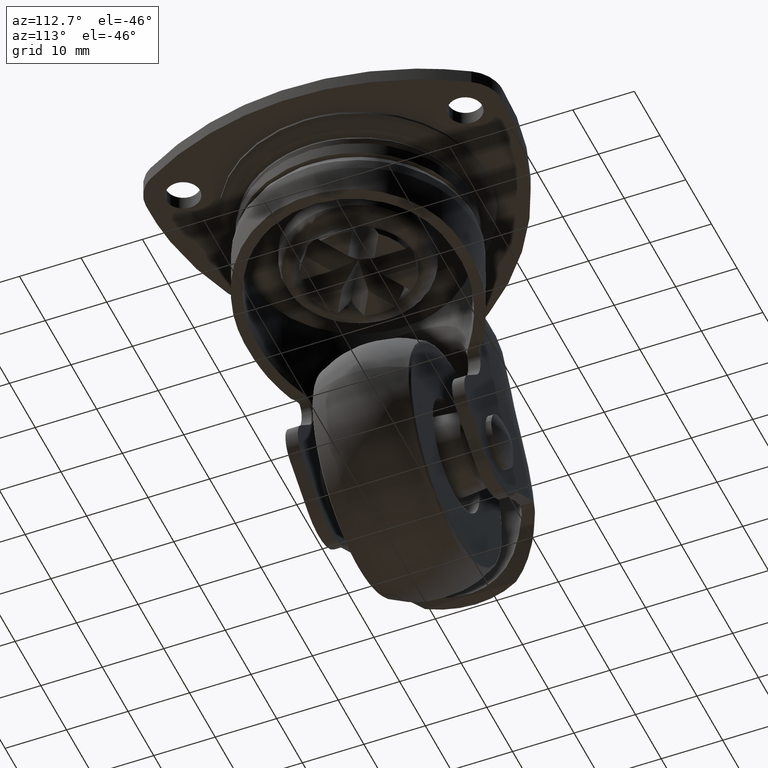
[diagram: clean part render]
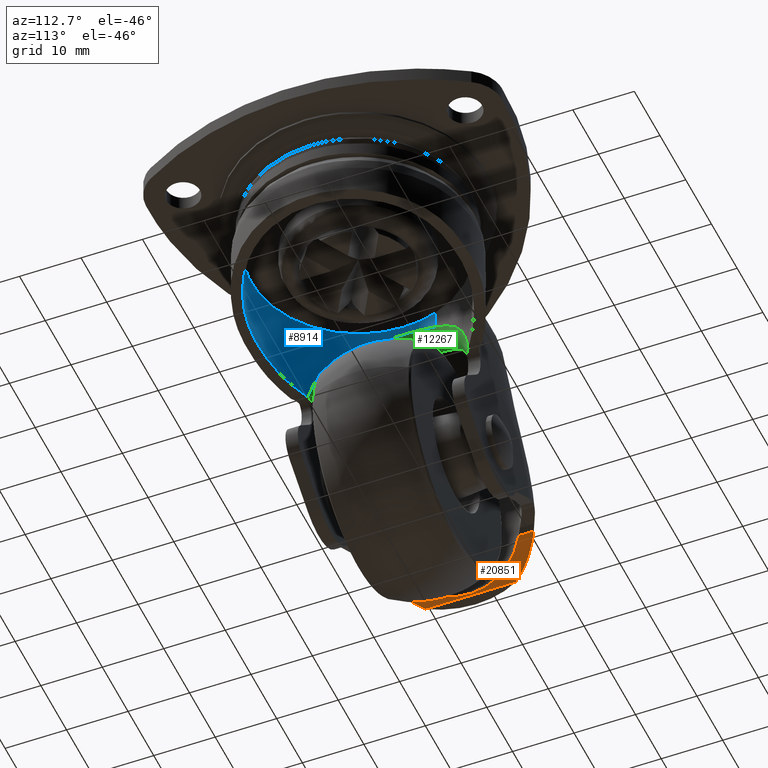
[diagram: same view with three faces highlighted in distinct colors, each labeled with its STEP entity id]
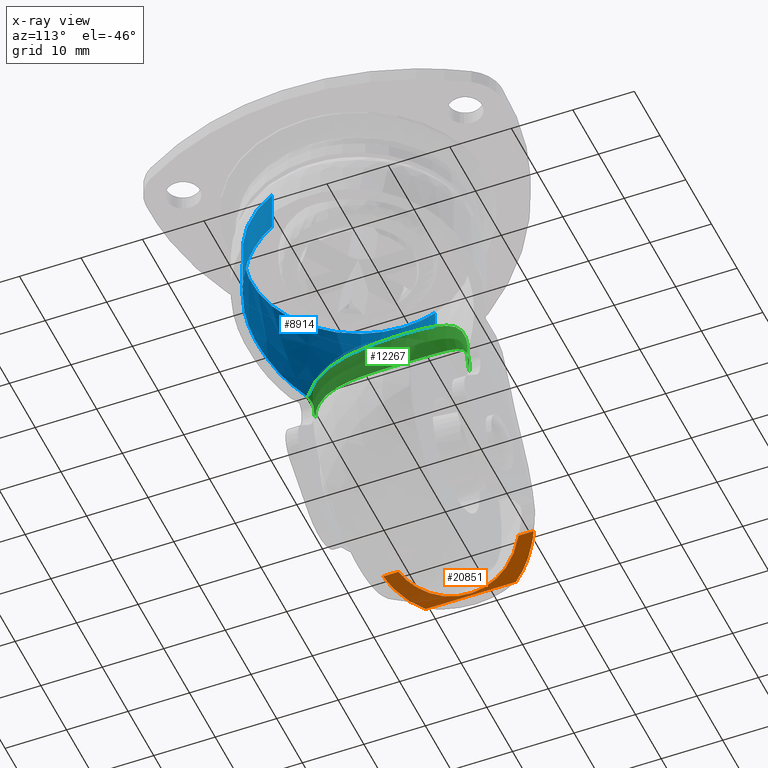
[diagram: x-ray of the same camera — body ghosted, the three highlighted faces saturated]
A machine part, auxiliary view with three faces highlighted in distinct colors.
The next image is the same camera in x-ray (body ghosted, the three faces saturated) — at least one of them is partly hidden behind the body in this view.
Their STEP definitions:

[orange] entity #20851 — the highlighted face is a freeform B-spline surface patch.
#12716=CARTESIAN_POINT('',(-38.990632415442150,-9.787020269318219,-39.001695045220352));
#12717=VERTEX_POINT('',#12716);
#12727=CARTESIAN_POINT('',(-38.990630976671603,9.787021459366850,-39.001695959185149));
#12728=VERTEX_POINT('',#12727);
#12729=CARTESIAN_POINT('',(-38.990630976671603,9.787021459366850,-39.001695959185149));
#12730=CARTESIAN_POINT('',(-39.288993677966531,9.562006643564985,-39.355919401635319));
#12731=CARTESIAN_POINT('',(-39.583609206239743,9.311210438640156,-39.689070081056812));
#12732=CARTESIAN_POINT('',(-40.160260491850650,8.754972560939475,-40.315029654420663));
#12733=CARTESIAN_POINT('',(-40.442314747536592,8.449560925788552,-40.607849924627402));
#12734=CARTESIAN_POINT('',(-40.783548513886487,8.030974399839327,-40.949355357571051));
#12735=CARTESIAN_POINT('',(-40.851226488175890,7.945411582078039,-41.016428179176422));
#12736=CARTESIAN_POINT('',(-40.985347564712463,7.770506921104625,-41.148124163342047));
#12737=CARTESIAN_POINT('',(-41.051927173366039,7.680971755287967,-41.212878087348891));
#12738=CARTESIAN_POINT('',(-41.248427771846849,7.408282555905510,-41.402285793588021));
#12739=CARTESIAN_POINT('',(-41.375129631431307,7.221085885086739,-41.522121762224643));
#12740=CARTESIAN_POINT('',(-41.741784581498457,6.643514656175595,-41.863414714080093));
#12741=CARTESIAN_POINT('',(-41.968327098355161,6.237218012157707,-42.066734901682302));
#12742=CARTESIAN_POINT('',(-42.278517920884532,5.595828503154815,-42.338338510820762));
#12743=CARTESIAN_POINT('',(-42.376968863386352,5.376693809676836,-42.423290842407880));
#12744=CARTESIAN_POINT('',(-42.516773449211961,5.039831844461711,-42.542531512786361));
#12745=CARTESIAN_POINT('',(-42.562062138085572,4.926183444152608,-42.580912466219502));
#12746=CARTESIAN_POINT('',(-42.649926482853068,4.696124794978926,-42.654957044260001));
#12747=CARTESIAN_POINT('',(-42.692510309039157,4.579664154245539,-42.690626533065547));
#12748=CARTESIAN_POINT('',(-42.896771094144128,3.995277264738415,-42.860835427628693));
#12749=CARTESIAN_POINT('',(-43.034062784457078,3.517352537985829,-42.972388711513140));
#12750=CARTESIAN_POINT('',(-43.256124428224147,2.541449465855905,-43.150859046308632));
#12751=CARTESIAN_POINT('',(-43.340905382379937,2.043472500861859,-43.217770067142212));
#12752=CARTESIAN_POINT('',(-43.412390976105961,1.408175184641963,-43.273966938009622));
#12753=CARTESIAN_POINT('',(-43.424976487564557,1.280216576087910,-43.283839974339543));
#12754=CARTESIAN_POINT('',(-43.446502079105272,1.024438048815317,-43.300706400954383));
#12755=CARTESIAN_POINT('',(-43.455447497552129,0.896664021942407,-43.307704088448119));
#12756=CARTESIAN_POINT('',(-43.476902049783277,0.513682281884785,-43.324475531683532));
#12757=CARTESIAN_POINT('',(-43.484034965497287,0.258814443791981,-43.330035818415780));
#12758=CARTESIAN_POINT('',(-43.484278662286250,-0.504454425801323,-43.330225878569522));
#12759=CARTESIAN_POINT('',(-43.456316956866353,-1.011527898232405,-43.308490100568889));
#12760=CARTESIAN_POINT('',(-43.372073373449261,-1.769449775164073,-43.242275537882719));
#12761=CARTESIAN_POINT('',(-43.336921458814992,-2.021640589195433,-43.214571261848597));
#12762=CARTESIAN_POINT('',(-43.273378466315002,-2.399231570420937,-43.164164815028592));
#12763=CARTESIAN_POINT('',(-43.250447480143123,-2.524624434768511,-43.145927957021577));
#12764=CARTESIAN_POINT('',(-43.201359420648743,-2.773298891827075,-43.106753830216711));
#12765=CARTESIAN_POINT('',(-43.175172293642852,-2.896761925073797,-43.085792735761977));
#12766=CARTESIAN_POINT('',(-43.036182568029957,-3.509754695926981,-42.974109226266727));
#12767=CARTESIAN_POINT('',(-42.899305537422279,-3.986380655834871,-42.862890032348787));
#12768=CARTESIAN_POINT('',(-42.657432990640807,-4.680807921902177,-42.661422788633800));
#12769=CARTESIAN_POINT('',(-42.570698507010668,-4.908852531131845,-42.588466944878377));
#12770=CARTESIAN_POINT('',(-42.431533636830572,-5.245679609452610,-42.469853342979427));
#12771=CARTESIAN_POINT('',(-42.383633888967871,-5.357081235883142,-42.428783712096731));
#12772=CARTESIAN_POINT('',(-42.284817538373410,-5.578111506521057,-42.343478441474360));
#12773=CARTESIAN_POINT('',(-42.233790602035022,-5.687964449045004,-42.299145924312072));
#12774=CARTESIAN_POINT('',(-41.972657346841054,-6.229556584226855,-42.070628617639542));
#12775=CARTESIAN_POINT('',(-41.745111996104797,-6.637693031425621,-41.866421425246081));
#12776=CARTESIAN_POINT('',(-41.258113663921193,-7.405985274463511,-41.413285550832910));
#12777=CARTESIAN_POINT('',(-40.998633312842372,-7.766117373345595,-41.164347082343191));
#12778=CARTESIAN_POINT('',(-40.656970846196039,-8.186476705319631,-40.822734584419543));
#12779=CARTESIAN_POINT('',(-40.587771112800617,-8.269054390151451,-40.752885480653291));
#12780=CARTESIAN_POINT('',(-40.447698581193073,-8.431212098185984,-40.610053782201909));
#12781=CARTESIAN_POINT('',(-40.377036532001547,-8.510543390177034,-40.537284331404358));
#12782=CARTESIAN_POINT('',(-40.163964273763497,-8.742682167431546,-40.315568366273403));
#12783=CARTESIAN_POINT('',(-40.020199352419482,-8.889952083638297,-40.162940603212327));
#12784=CARTESIAN_POINT('',(-39.584821219891062,-9.310284397235941,-39.690480312099908));
#12785=CARTESIAN_POINT('',(-39.289136016345772,-9.561899147327074,-39.356085811793463));
#12786=CARTESIAN_POINT('',(-38.990632415442150,-9.787020269318219,-39.001695045220352));
#12787=B_SPLINE_CURVE_WITH_KNOTS('',3,(#12729,#12730,#12731,#12732,#12733,#12734,#12735,#12736,#12737,#12738,#12739,#12740,#12741,#12742,#12743,#12744,#12745,#12746,#12747,#12748,#12749,#12750,#12751,#12752,#12753,#12754,#12755,#12756,#12757,#12758,#12759,#12760,#12761,#12762,#12763,#12764,#12765,#12766,#12767,#12768,#12769,#12770,#12771,#12772,#12773,#12774,#12775,#12776,#12777,#12778,#12779,#12780,#12781,#12782,#12783,#12784,#12785,#12786),.UNSPECIFIED.,.F.,.U.,(4,2,2,2,2,2,2,2,2,2,2,2,2,2,2,2,2,2,2,2,2,2,2,2,2,2,2,2,4),(9.078716E-009,0.062499999999998,0.124999999999995,0.140624999999995,0.156249999999994,0.187499999999993,0.249999999999993,0.281249999999992,0.296874999999992,0.312499999999992,0.374999999999990,0.437499999999989,0.453124999999989,0.468749999999988,0.499999999999988,0.562499999999986,0.593749999999986,0.609374999999986,0.624999999999985,0.687499999999986,0.718749999999986,0.734374999999986,0.749999999999986,0.812499999999989,0.874999999999991,0.890624999999992,0.906249999999993,0.937499999999995,1.0),.UNSPECIFIED.);
#12788=EDGE_CURVE('',#12728,#12717,#12787,.T.);
#13518=CARTESIAN_POINT('',(-43.709543506826712,-7.366659395732890,-43.504274996629952));
#13519=VERTEX_POINT('',#13518);
#13536=CARTESIAN_POINT('',(-43.709543506826712,7.366659395732890,-43.504274996629952));
#13537=VERTEX_POINT('',#13536);
#13545=CARTESIAN_POINT('',(-43.709543506826712,7.366659395732890,-43.504274996629952));
#13546=CARTESIAN_POINT('',(-43.709543506826712,-7.366659395732890,-43.504274996629952));
#13547=QUASI_UNIFORM_CURVE('',1,(#13545,#13546),.UNSPECIFIED.,.F.,.U.);
#13548=EDGE_CURVE('',#13537,#13519,#13547,.T.);
#20108=CARTESIAN_POINT('',(-38.990632415452247,12.242027815838600,-39.001695045232353));
#20109=VERTEX_POINT('',#20108);
#20119=CARTESIAN_POINT('',(-43.709543506826712,7.366659395732890,-43.504274996629952));
#20120=CARTESIAN_POINT('',(-43.707017183980568,7.371031835306637,-43.502342272152369));
#20121=CARTESIAN_POINT('',(-43.705548539522603,7.376277017478556,-43.501218117187143));
#20122=CARTESIAN_POINT('',(-43.703018496050007,7.380645482363911,-43.499281276092113));
#20123=CARTESIAN_POINT('',(-43.700499883496271,7.384994210209903,-43.497353185784803));
#20124=CARTESIAN_POINT('',(-43.697982293106477,7.389336003883070,-43.495425245854243));
#20125=CARTESIAN_POINT('',(-43.695459984626901,7.393680768819083,-43.493493057226772));
#20126=CARTESIAN_POINT('',(-43.690417633866623,7.402366395083969,-43.489630415970318));
#20127=CARTESIAN_POINT('',(-43.685367783969028,7.411044293866299,-43.485759490629263));
#20128=CARTESIAN_POINT('',(-43.680310698081080,7.419714033291863,-43.481880456871522));
#20129=CARTESIAN_POINT('',(-43.670196921899169,7.437052833946729,-43.474122692796087));
#20130=CARTESIAN_POINT('',(-43.660054193364452,7.454359051898582,-43.466332491896580));
#20131=CARTESIAN_POINT('',(-43.649881839056867,7.471633990940010,-43.458509125024626));
#20132=CARTESIAN_POINT('',(-43.630397850797763,7.504722172818339,-43.443524355160093));
#20133=CARTESIAN_POINT('',(-43.608209925650499,7.542048478517181,-43.426414945506139));
#20134=CARTESIAN_POINT('',(-43.588504254813166,7.574889547544951,-43.411178553927023));
#20135=CARTESIAN_POINT('',(-43.547406188692001,7.643382746154409,-43.379401598261012));
#20136=CARTESIAN_POINT('',(-43.505702093596589,7.711598294887198,-43.346984788897302));
#20137=CARTESIAN_POINT('',(-43.463702255000477,7.779040216867532,-43.314155763271259));
#20138=CARTESIAN_POINT('',(-43.379605861402162,7.914079364765884,-43.248422113981647));
#20139=CARTESIAN_POINT('',(-43.293742375230643,8.046973515435660,-43.180584822906951));
#20140=CARTESIAN_POINT('',(-43.206223600607920,8.177642022079851,-43.110621311058253));
#20141=CARTESIAN_POINT('',(-43.031156697476163,8.439022861718716,-42.970670821527577));
#20142=CARTESIAN_POINT('',(-42.849639470649400,8.691240184181307,-42.822352778710552));
#20143=CARTESIAN_POINT('',(-42.662480557290912,8.933927178510281,-42.665416271305887));
#20144=CARTESIAN_POINT('',(-42.287753193970410,9.419832208974301,-42.351199851830152));
#20145=CARTESIAN_POINT('',(-41.892628859777588,9.864672848140673,-42.004293618126049));
#20146=CARTESIAN_POINT('',(-41.483582009672688,10.267909234255990,-41.623062264416198));
#20147=CARTESIAN_POINT('',(-40.972618718792518,10.771614349695129,-41.146844865288621));
#20148=CARTESIAN_POINT('',(-40.388879638315153,11.267507618907530,-40.565003735664227));
#20149=CARTESIAN_POINT('',(-39.868515641608390,11.656837079383310,-39.999999999999147));
#20150=CARTESIAN_POINT('',(-39.734067688062403,11.757428385235579,-39.854018347758100));
#20151=CARTESIAN_POINT('',(-39.564223670076473,11.877278290729491,-39.663905686199108));
#20152=CARTESIAN_POINT('',(-39.429573766220273,11.966907491494210,-39.511126382697000));
#20153=CARTESIAN_POINT('',(-39.282959262960382,12.064500882735951,-39.344771553990427));
#20154=CARTESIAN_POINT('',(-39.136562107653369,12.156104998810481,-39.174946325349538));
#20155=CARTESIAN_POINT('',(-38.990632415452247,12.242027815838600,-39.001695045232353));
#20156=B_SPLINE_CURVE_WITH_KNOTS('',3,(#20119,#20120,#20121,#20122,#20123,#20124,#20125,#20126,#20127,#20128,#20129,#20130,#20131,#20132,#20133,#20134,#20135,#20136,#20137,#20138,#20139,#20140,#20141,#20142,#20143,#20144,#20145,#20146,#20147,#20148,#20149,#20150,#20151,#20152,#20153,#20154,#20155),.UNSPECIFIED.,.F.,.U.,(4,3,3,3,3,3,3,3,3,3,3,3,4),(0.0,0.016221085959232,0.032368883882398,0.064649971542392,0.129209621652347,0.252866292145760,0.510764135980492,1.027153705756079,2.060106042895941,4.128270998474303,6.711731478647526,7.379226461663778,8.106033110318473),.UNSPECIFIED.);
#20157=EDGE_CURVE('',#13537,#20109,#20156,.T.);
#20162=CARTESIAN_POINT('',(-38.990632415452247,-12.242027815838600,-39.001695045232353));
#20163=VERTEX_POINT('',#20162);
#20164=CARTESIAN_POINT('',(-38.990632415452247,-12.242027815838600,-39.001695045232353));
#20165=CARTESIAN_POINT('',(-39.198062127834682,-12.119905592209900,-39.247966682123362));
#20166=CARTESIAN_POINT('',(-39.432710294696960,-11.969410720584390,-39.517467773583149));
#20167=CARTESIAN_POINT('',(-39.680206157213043,-11.794485978963930,-39.792043913008207));
#20168=CARTESIAN_POINT('',(-39.732281281617666,-11.756812490926460,-39.849323586030870));
#20169=CARTESIAN_POINT('',(-39.810417408745863,-11.700378714283550,-39.935273197771302));
#20170=CARTESIAN_POINT('',(-40.317582800152827,-11.322213488415411,-40.487047334739742));
#20171=CARTESIAN_POINT('',(-40.892067694150668,-10.837549338668961,-41.066733898352133));
#20172=CARTESIAN_POINT('',(-41.688461405701943,-10.073195415977869,-41.816785560415397));
#20173=CARTESIAN_POINT('',(-42.464044469236612,-9.234962573924914,-42.511212125437957));
#20174=CARTESIAN_POINT('',(-43.129127910808748,-8.321852570602697,-43.053418407547390));
#20175=CARTESIAN_POINT('',(-43.536932299424130,-7.660563958154056,-43.371281598697237));
#20176=CARTESIAN_POINT('',(-43.619839775016530,-7.523973717537496,-43.435464587219137));
#20177=CARTESIAN_POINT('',(-43.679868864298982,-7.419320110048187,-43.481577169014642));
#20178=CARTESIAN_POINT('',(-43.709543506826712,-7.366659395732890,-43.504274996629952));
#20179=B_SPLINE_CURVE_WITH_KNOTS('',3,(#20164,#20165,#20166,#20167,#20168,#20169,#20170,#20171,#20172,#20173,#20174,#20175,#20176,#20177,#20178),.UNSPECIFIED.,.F.,.U.,(4,1,1,1,1,1,1,1,1,1,1,1,4),(0.000018688421772,1.033143566767974,1.162283488413180,1.226854395462529,1.291425302511876,1.549706917377150,3.745098987006710,4.132520930046336,5.553066965250800,7.748457941542741,7.877597511184081,8.071310750516025,8.265021561863955),.UNSPECIFIED.);
#20180=EDGE_CURVE('',#20163,#13519,#20179,.T.);
#20796=CARTESIAN_POINT('',(-38.990632415442150,-9.787020269318219,-39.001695045220352));
#20797=CARTESIAN_POINT('',(-38.990632415452247,-12.242027815838600,-39.001695045232353));
#20798=QUASI_UNIFORM_CURVE('',1,(#20796,#20797),.UNSPECIFIED.,.F.,.U.);
#20799=EDGE_CURVE('',#12717,#20163,#20798,.T.);
#20819=CARTESIAN_POINT('',(-38.990632415452247,12.242027815838600,-39.001695045232353));
#20820=CARTESIAN_POINT('',(-38.990630976671603,9.787021459366850,-39.001695959185149));
#20821=QUASI_UNIFORM_CURVE('',1,(#20819,#20820),.UNSPECIFIED.,.F.,.U.);
#20822=EDGE_CURVE('',#20109,#12728,#20821,.T.);
#20829=CARTESIAN_POINT('',(-38.782221923353063,12.854129206630533,-38.751524081145512));
#20830=CARTESIAN_POINT('',(-38.782221923353063,-12.869431741400325,-38.751524081145512));
#20831=CARTESIAN_POINT('',(-41.078159521598110,12.854129206630528,-41.538103851431963));
#20832=CARTESIAN_POINT('',(-41.078159521598110,-12.869431741400328,-41.538103851431963));
#20833=CARTESIAN_POINT('',(-43.969349817693420,12.854129206630532,-43.700827815087358));
#20834=CARTESIAN_POINT('',(-43.969349817693420,-12.869431741400332,-43.700827815087358));
#20842=(BOUNDED_SURFACE()B_SPLINE_SURFACE(1,2,((#20829,#20831,#20833),(#20830,#20832,#20834)),.UNSPECIFIED.,.F.,.F.,.U.)B_SPLINE_SURFACE_WITH_KNOTS((2,2),(3,3),(0.0,25.723560948030858),(0.0,7.195252608672478),.UNSPECIFIED.)GEOMETRIC_REPRESENTATION_ITEM()RATIONAL_B_SPLINE_SURFACE(((0.997692460482266,0.990281225721257,0.997142927263545),(0.997692460482266,0.990281225721257,0.997142927263545)))REPRESENTATION_ITEM('')SURFACE());
#20843=ORIENTED_EDGE('',*,*,#20822,.T.);
#20844=ORIENTED_EDGE('',*,*,#12788,.T.);
#20845=ORIENTED_EDGE('',*,*,#20799,.T.);
#20846=ORIENTED_EDGE('',*,*,#20180,.T.);
#20847=ORIENTED_EDGE('',*,*,#13548,.F.);
#20848=ORIENTED_EDGE('',*,*,#20157,.T.);
#20849=EDGE_LOOP('',(#20843,#20844,#20845,#20846,#20847,#20848));
#20850=FACE_OUTER_BOUND('',#20849,.T.);
#20851=ADVANCED_FACE('',(#20850),#20842,.T.);

[blue] entity #8914 — the highlighted face is a freeform B-spline surface patch.
#8462=CARTESIAN_POINT('',(-16.438563581971302,5.618435099719518,-13.756746465194340));
#8463=VERTEX_POINT('',#8462);
#8590=CARTESIAN_POINT('',(15.679886700552959,-7.478918026366475,-17.624665072809151));
#8591=VERTEX_POINT('',#8590);
#8633=CARTESIAN_POINT('',(15.679890345803759,-7.478911289378994,-10.756337999999980));
#8634=VERTEX_POINT('',#8633);
#8635=CARTESIAN_POINT('',(15.679890345803759,-7.478911289378994,-10.756337999999980));
#8636=CARTESIAN_POINT('',(15.679886700552959,-7.478918026366475,-17.624665072809151));
#8637=QUASI_UNIFORM_CURVE('',1,(#8635,#8636),.UNSPECIFIED.,.F.,.U.);
#8638=EDGE_CURVE('',#8634,#8591,#8637,.T.);
#8655=CARTESIAN_POINT('',(-16.438562554967341,5.618428290665593,-10.756337999999980));
#8656=VERTEX_POINT('',#8655);
#8672=CARTESIAN_POINT('',(-16.438562554967341,5.618428290665593,-10.756337999999980));
#8673=CARTESIAN_POINT('',(-16.438563581971302,5.618435099719518,-13.756746465194340));
#8674=QUASI_UNIFORM_CURVE('',1,(#8672,#8673),.UNSPECIFIED.,.F.,.U.);
#8675=EDGE_CURVE('',#8656,#8463,#8674,.T.);
#8680=CARTESIAN_POINT('',(15.679885387246580,-7.478921685228040,-10.370579294695430));
#8681=CARTESIAN_POINT('',(8.200963702018541,-23.158807072474630,-10.370579294695430));
#8682=CARTESIAN_POINT('',(-7.478921685228040,-15.679885387246580,-10.370579294695430));
#8683=CARTESIAN_POINT('',(-21.441729492488797,-9.019967695416353,-10.370579294695430));
#8684=CARTESIAN_POINT('',(-16.438560578550561,5.618434073323876,-10.370579294695430));
#8685=CARTESIAN_POINT('',(15.679885387246580,-7.478921685228040,-26.582088885119060));
#8686=CARTESIAN_POINT('',(8.200963702018541,-23.158807072474630,-26.582088885119056));
#8687=CARTESIAN_POINT('',(-7.478921685228040,-15.679885387246580,-26.582088885119060));
#8688=CARTESIAN_POINT('',(-21.441729492488797,-9.019967695416353,-26.582088885119063));
#8689=CARTESIAN_POINT('',(-16.438560578550561,5.618434073323876,-26.582088885119060));
#8697=(BOUNDED_SURFACE()B_SPLINE_SURFACE(2,1,((#8680,#8685),(#8681,#8686),(#8682,#8687),(#8683,#8688),(#8684,#8689)),.UNSPECIFIED.,.F.,.F.,.U.)B_SPLINE_SURFACE_WITH_KNOTS((3,2,3),(2,2),(0.0,28.783191113209941,55.263726937363082),(0.0,16.211509590423638),.UNSPECIFIED.)GEOMETRIC_REPRESENTATION_ITEM()RATIONAL_B_SPLINE_SURFACE(((1.0,1.0),(0.707106781186548,0.707106781186548),(1.0,1.0),(0.730538238691624,0.730538238691624),(0.956886118190660,0.956886118190660)))REPRESENTATION_ITEM('')SURFACE());
#8698=CARTESIAN_POINT('',(-11.462223214484739,-13.054137823398760,-26.186686212181900));
#8699=VERTEX_POINT('',#8698);
#8700=CARTESIAN_POINT('',(-11.462223214484739,-13.054137823398760,-26.186686212181900));
#8701=CARTESIAN_POINT('',(-11.529242868406390,-12.995291002368591,-25.737962508717139));
#8702=CARTESIAN_POINT('',(-11.609231764429760,-12.924171375894590,-25.293603520474289));
#8703=CARTESIAN_POINT('',(-11.746792368308000,-12.798819894264881,-24.633313339671449));
#8704=CARTESIAN_POINT('',(-11.795538716116489,-12.753950693627070,-24.414476881740640));
#8705=CARTESIAN_POINT('',(-11.898134297940810,-12.658293384951000,-23.980650415326259));
#8706=CARTESIAN_POINT('',(-11.952026161978260,-12.607466573950690,-23.765452300651120));
#8707=CARTESIAN_POINT('',(-12.120940140374049,-12.445889473300831,-23.124869857879791));
#8708=CARTESIAN_POINT('',(-12.243192443898209,-12.326066317192749,-22.704487578170681));
#8709=CARTESIAN_POINT('',(-12.504323531515050,-12.061076372899510,-21.876611832389781));
#8710=CARTESIAN_POINT('',(-12.643206081326291,-11.915910888415960,-21.469119105978379));
#8711=CARTESIAN_POINT('',(-12.862174831125150,-11.677720467225390,-20.867436541004398));
#8712=CARTESIAN_POINT('',(-12.936939926724181,-11.594910443065681,-20.668470766075561));
#8713=CARTESIAN_POINT('',(-13.089727849589760,-11.422144566407400,-20.273739177815830));
#8714=CARTESIAN_POINT('',(-13.167508374016171,-11.332458089620181,-20.078608503208859));
#8715=CARTESIAN_POINT('',(-13.403797959919830,-11.053983075937531,-19.501475517798831));
#8716=CARTESIAN_POINT('',(-13.565521074523620,-10.855494959354351,-19.127017252982458));
#8717=CARTESIAN_POINT('',(-13.894477845030670,-10.431136817755940,-18.398452836553702));
#8718=CARTESIAN_POINT('',(-14.061716520881070,-10.205271854985680,-18.044345748345091));
#8719=CARTESIAN_POINT('',(-14.398897196267329,-9.723744201806753,-17.356738036199811));
#8720=CARTESIAN_POINT('',(-14.568845081503721,-9.468091607883549,-17.023233613157899));
#8721=CARTESIAN_POINT('',(-14.823618579872351,-9.059752660308954,-16.539043934553160));
#8722=CARTESIAN_POINT('',(-14.908517097137761,-8.919488138528347,-16.380329931303180));
#8723=CARTESIAN_POINT('',(-15.077873156199070,-8.630115278349960,-16.068435973739181));
#8724=CARTESIAN_POINT('',(-15.161922318833509,-8.481691895017026,-15.916011196208210));
#8725=CARTESIAN_POINT('',(-15.410836224721780,-8.026140896856228,-15.470711731845130));
#8726=CARTESIAN_POINT('',(-15.572790149853020,-7.708226204155214,-15.189203016698681));
#8727=CARTESIAN_POINT('',(-15.885335924781840,-7.041636321362147,-14.657828677587800));
#8728=CARTESIAN_POINT('',(-16.035938731685039,-6.692975415528137,-14.407951672493770));
#8729=CARTESIAN_POINT('',(-16.214727683304829,-6.235805645173444,-14.116639561173271));
#8730=CARTESIAN_POINT('',(-16.250010732683521,-6.143301195879148,-14.059432085866799));
#8731=CARTESIAN_POINT('',(-16.319560934362730,-5.956083276177948,-13.947172934361300));
#8732=CARTESIAN_POINT('',(-16.353832763869310,-5.861350000792931,-13.892114360278191));
#8733=CARTESIAN_POINT('',(-16.454617812709088,-5.574904197777166,-13.730890059640551));
#8734=CARTESIAN_POINT('',(-16.519241916708800,-5.380578143886179,-13.628445598606390));
#8735=CARTESIAN_POINT('',(-16.642903849209450,-4.984949689193016,-13.433845188603390));
#8736=CARTESIAN_POINT('',(-16.701971339498229,-4.783540348544103,-13.341643407503209));
#8737=CARTESIAN_POINT('',(-16.813901733525139,-4.373878211072979,-13.168034238234069));
#8738=CARTESIAN_POINT('',(-16.919216708582859,-3.958898475982338,-13.005853561870341));
#8739=CARTESIAN_POINT('',(-17.010556880834081,-3.533025900459922,-12.866806643479210));
#8740=CARTESIAN_POINT('',(-17.073512006505759,-3.209403602656487,-12.771388426669979));
#8741=CARTESIAN_POINT('',(-17.093571700711450,-3.100826128262325,-12.741061133584351));
#8742=CARTESIAN_POINT('',(-17.131784036303198,-2.882237063910917,-12.683408324577609));
#8743=CARTESIAN_POINT('',(-17.149941175370060,-2.772171845438788,-12.656076224190020));
#8744=CARTESIAN_POINT('',(-17.235312639109601,-2.221630922636045,-12.527797204540031));
#8745=CARTESIAN_POINT('',(-17.286792718026319,-1.777874801725244,-12.451177924562851));
#8746=CARTESIAN_POINT('',(-17.355489584740720,-0.883751809870909,-12.349122387115960));
#8747=CARTESIAN_POINT('',(-17.372710498911239,-0.433385509112264,-12.323682498894920));
#8748=CARTESIAN_POINT('',(-17.371911895558270,0.247262807970309,-12.324864401803829));
#8749=CARTESIAN_POINT('',(-17.367202153132940,0.474997186010921,-12.331831957710550));
#8750=CARTESIAN_POINT('',(-17.353302011683891,0.817911565142100,-12.352426670284830));
#8751=CARTESIAN_POINT('',(-17.347525159659121,0.932374061379429,-12.360989057060671));
#8752=CARTESIAN_POINT('',(-17.333811103900921,1.159716362510927,-12.381333553423289));
#8753=CARTESIAN_POINT('',(-17.325864961114011,1.272849269341193,-12.393128910716440));
#8754=CARTESIAN_POINT('',(-17.280819180449690,1.835877304710902,-12.460069310742140));
#8755=CARTESIAN_POINT('',(-17.227807098991999,2.277888079743335,-12.539017395825359));
#8756=CARTESIAN_POINT('',(-17.090595136337551,3.146055605159412,-12.745312241962340));
#8757=CARTESIAN_POINT('',(-17.006385154988308,3.572207920591037,-12.872671632368570));
#8758=CARTESIAN_POINT('',(-16.882935690769131,4.095241603713753,-13.061885774620791));
#8759=CARTESIAN_POINT('',(-16.857335243538270,4.199364303674790,-13.101233780394590));
#8760=CARTESIAN_POINT('',(-16.804341859462280,4.406643404525686,-13.182951342943120));
#8761=CARTESIAN_POINT('',(-16.776970264821731,4.509700513917641,-13.225288646472251));
#8762=CARTESIAN_POINT('',(-16.692833098928460,4.815281774001521,-13.355883873869910));
#8763=CARTESIAN_POINT('',(-16.633867406871069,5.014932944221296,-13.447997974372960));
#8764=CARTESIAN_POINT('',(-16.528979855550929,5.348518503976549,-13.613174545655120));
#8765=CARTESIAN_POINT('',(-16.484373376735920,5.484397774860550,-13.683787506150111));
#8766=CARTESIAN_POINT('',(-16.438563581971302,5.618435099719518,-13.756746465194340));
#8767=B_SPLINE_CURVE_WITH_KNOTS('',3,(#8700,#8701,#8702,#8703,#8704,#8705,#8706,#8707,#8708,#8709,#8710,#8711,#8712,#8713,#8714,#8715,#8716,#8717,#8718,#8719,#8720,#8721,#8722,#8723,#8724,#8725,#8726,#8727,#8728,#8729,#8730,#8731,#8732,#8733,#8734,#8735,#8736,#8737,#8738,#8739,#8740,#8741,#8742,#8743,#8744,#8745,#8746,#8747,#8748,#8749,#8750,#8751,#8752,#8753,#8754,#8755,#8756,#8757,#8758,#8759,#8760,#8761,#8762,#8763,#8764,#8765,#8766),.UNSPECIFIED.,.F.,.U.,(4,2,2,2,2,2,2,2,2,2,2,2,2,2,2,2,2,2,2,1,2,2,2,2,2,2,2,2,2,2,2,2,2,4),(0.0,0.031249999999999,0.046874999999999,0.062499999999998,0.093749999999998,0.124999999999997,0.140624999999997,0.156249999999997,0.187499999999997,0.218749999999996,0.249999999999996,0.265624999999996,0.281249999999996,0.312499999999995,0.343749999999995,0.351562499999995,0.359374999999995,0.374999999999996,0.390624999999996,0.406249999999996,0.421874999999996,0.429687499999997,0.437499999999997,0.468749999999997,0.499999999999998,0.515624999999998,0.523437499999998,0.531249999999998,0.562499999999998,0.593749999999999,0.601562499999999,0.609374999999999,0.624999999999999,0.635994431743277),.UNSPECIFIED.);
#8768=EDGE_CURVE('',#8699,#8463,#8767,.T.);
#8769=ORIENTED_EDGE('',*,*,#8768,.T.);
#8770=ORIENTED_EDGE('',*,*,#8675,.F.);
#8771=CARTESIAN_POINT('',(-17.372192588472050,0.0,-10.756337999999980));
#8772=VERTEX_POINT('',#8771);
#8773=CARTESIAN_POINT('',(-17.372192588472050,0.0,-10.756337999999980));
#8774=CARTESIAN_POINT('',(-17.372192588472057,2.886786109801061,-10.756337999999982));
#8775=CARTESIAN_POINT('',(-16.438562554967337,5.618428290665593,-10.756337999999982));
#8783=(BOUNDED_CURVE()B_SPLINE_CURVE(2,(#8773,#8774,#8775),.UNSPECIFIED.,.F.,.U.)B_SPLINE_CURVE_WITH_KNOTS((3,3),(0.500000000000000,0.554967492188971),.UNSPECIFIED.)CURVE()GEOMETRIC_REPRESENTATION_ITEM()RATIONAL_B_SPLINE_CURVE((1.0,0.935601577130676,0.899521712709764))REPRESENTATION_ITEM(''));
#8784=EDGE_CURVE('',#8772,#8656,#8783,.T.);
#8785=ORIENTED_EDGE('',*,*,#8784,.F.);
#8786=CARTESIAN_POINT('',(15.679890345803765,-7.478911289378994,-10.756337999999984));
#8787=CARTESIAN_POINT('',(10.961045279612071,-17.372192588472053,-10.756337999999980));
#8788=CARTESIAN_POINT('',(0.0,-17.372192588472050,-10.756337999999980));
#8789=CARTESIAN_POINT('',(-17.372192588472053,-17.372192588472053,-10.756337999999982));
#8790=CARTESIAN_POINT('',(-17.372192588472050,0.0,-10.756337999999980));
#8798=(BOUNDED_CURVE()B_SPLINE_CURVE(2,(#8786,#8787,#8788,#8789,#8790),.UNSPECIFIED.,.F.,.U.)B_SPLINE_CURVE_WITH_KNOTS((3,2,3),(0.073145176869554,0.250000000000000,0.500000000000000),.UNSPECIFIED.)CURVE()GEOMETRIC_REPRESENTATION_ITEM()RATIONAL_B_SPLINE_CURVE((0.878755541615329,0.792801686362559,1.0,0.707106781186548,1.0))REPRESENTATION_ITEM(''));
#8799=EDGE_CURVE('',#8634,#8772,#8798,.T.);
#8800=ORIENTED_EDGE('',*,*,#8799,.F.);
#8801=ORIENTED_EDGE('',*,*,#8638,.T.);
#8802=CARTESIAN_POINT('',(11.210520508588299,-13.270919533230700,-18.424408352251199));
#8803=VERTEX_POINT('',#8802);
#8804=CARTESIAN_POINT('',(11.210520508588299,-13.270919533230700,-18.424408352251199));
#8805=CARTESIAN_POINT('',(11.448846895982740,-13.069594909530540,-18.377617523436701));
#8806=CARTESIAN_POINT('',(11.682613177590291,-12.861129881748550,-18.332388772744210));
#8807=CARTESIAN_POINT('',(12.026223699871259,-12.537455010566569,-18.266810911720938));
#8808=CARTESIAN_POINT('',(12.139764805292440,-12.427552198739120,-18.245295960288939));
#8809=CARTESIAN_POINT('',(12.363367024560119,-12.205125931190620,-18.203214634085651));
#8810=CARTESIAN_POINT('',(12.473443345808260,-12.092600460820140,-18.182644716376011));
#8811=CARTESIAN_POINT('',(13.015284148124801,-11.523482350269550,-18.082066073221039));
#8812=CARTESIAN_POINT('',(13.421499587187760,-11.047473704102110,-18.008846668539999));
#8813=CARTESIAN_POINT('',(14.180337599063270,-10.054916806632530,-17.875173542525300));
#8814=CARTESIAN_POINT('',(14.532959982319641,-9.538368043224201,-17.814722756126379));
#8815=CARTESIAN_POINT('',(15.021008824871460,-8.732751460752937,-17.732740728106030));
#8816=CARTESIAN_POINT('',(15.176863404475640,-8.459069515470677,-17.706866343316559));
#8817=CARTESIAN_POINT('',(15.400179740312570,-8.040679724420563,-17.670158587392748));
#8818=CARTESIAN_POINT('',(15.472873265607429,-7.899904560096170,-17.658273546465590));
#8819=CARTESIAN_POINT('',(15.590000212517531,-7.665224955604562,-17.639217387106061));
#8820=CARTESIAN_POINT('',(15.635385899104390,-7.572213994470894,-17.631857969293570));
#8821=CARTESIAN_POINT('',(15.679886700552959,-7.478918026366475,-17.624665072809151));
#8822=B_SPLINE_CURVE_WITH_KNOTS('',3,(#8804,#8805,#8806,#8807,#8808,#8809,#8810,#8811,#8812,#8813,#8814,#8815,#8816,#8817,#8818,#8819,#8820,#8821),.UNSPECIFIED.,.F.,.U.,(4,2,2,2,2,2,2,2,4),(0.0,0.031250000000000,0.046875000000000,0.062500000000000,0.125000000000000,0.187499999999999,0.218749999999999,0.234374999999999,0.244554025565073),.UNSPECIFIED.);
#8823=EDGE_CURVE('',#8803,#8591,#8822,.T.);
#8824=ORIENTED_EDGE('',*,*,#8823,.F.);
#8825=CARTESIAN_POINT('',(3.662010262553715,-16.981836065865050,-20.641823778849300));
#8826=VERTEX_POINT('',#8825);
#8827=CARTESIAN_POINT('',(3.662010262553715,-16.981836065865050,-20.641823778849300));
#8828=CARTESIAN_POINT('',(3.889937204085352,-16.932685243631731,-20.551428814909858));
#8829=CARTESIAN_POINT('',(4.118473761750950,-16.878598968930159,-20.463056131735971));
#8830=CARTESIAN_POINT('',(4.576110325399271,-16.760314490150559,-20.290572196335368));
#8831=CARTESIAN_POINT('',(4.803653068911375,-16.696522255596250,-20.207045558625200));
#8832=CARTESIAN_POINT('',(5.482368121021960,-16.491215144441330,-19.964297331328670));
#8833=CARTESIAN_POINT('',(5.929633940203702,-16.335788204334190,-19.812902174902302));
#8834=CARTESIAN_POINT('',(7.254875679187955,-15.813339739409679,-19.387732054664390));
#8835=CARTESIAN_POINT('',(8.116437945783126,-15.390497471930070,-19.142924401267461));
#8836=CARTESIAN_POINT('',(9.161070859908239,-14.762359682945240,-18.878585218556321));
#8837=CARTESIAN_POINT('',(9.368370259243237,-14.631725450487931,-18.827804845889830));
#8838=CARTESIAN_POINT('',(9.676749144669303,-14.428054225964861,-18.754651256794752));
#8839=CARTESIAN_POINT('',(9.779246892920853,-14.358782484389890,-18.730739488289519));
#8840=CARTESIAN_POINT('',(9.982438197870948,-14.218271016840241,-18.684112793756881));
#8841=CARTESIAN_POINT('',(10.083180800580360,-14.147003626638030,-18.661385028496770));
#8842=CARTESIAN_POINT('',(10.536163495272900,-13.819270403780321,-18.560877367807471));
#8843=CARTESIAN_POINT('',(10.878644655173931,-13.551275627543180,-18.489564967612811));
#8844=CARTESIAN_POINT('',(11.210520508588299,-13.270919533230700,-18.424408352251199));
#8845=B_SPLINE_CURVE_WITH_KNOTS('',3,(#8827,#8828,#8829,#8830,#8831,#8832,#8833,#8834,#8835,#8836,#8837,#8838,#8839,#8840,#8841,#8842,#8843,#8844),.UNSPECIFIED.,.F.,.U.,(4,2,2,2,2,2,2,2,4),(0.0,0.015625000000000,0.031250000000000,0.062499999999999,0.124999999999999,0.140624999999999,0.148437499999999,0.156249999999999,0.183864964177190),.UNSPECIFIED.);
#8846=EDGE_CURVE('',#8826,#8803,#8845,.T.);
#8847=ORIENTED_EDGE('',*,*,#8846,.F.);
#8848=CARTESIAN_POINT('',(-1.330543638160180,-17.321164191760150,-21.891081822252950));
#8849=VERTEX_POINT('',#8848);
#8850=CARTESIAN_POINT('',(-1.330543638160180,-17.321164191760150,-21.891081822252950));
#8851=CARTESIAN_POINT('',(-0.495383261917997,-17.385317923795611,-21.662346117325139));
#8852=CARTESIAN_POINT('',(0.338273691768403,-17.388911858494321,-21.444051588948710));
#8853=CARTESIAN_POINT('',(2.002547658991313,-17.276529963696280,-21.027791654551010));
#8854=CARTESIAN_POINT('',(2.833166172138724,-17.160570305989879,-20.829827848705591));
#8855=CARTESIAN_POINT('',(3.662010262553716,-16.981836065865050,-20.641823778849300));
#8856=B_SPLINE_CURVE_WITH_KNOTS('',3,(#8850,#8851,#8852,#8853,#8854,#8855),.UNSPECIFIED.,.F.,.U.,(4,2,4),(0.0,0.500000000000000,1.0),.UNSPECIFIED.);
#8857=EDGE_CURVE('',#8849,#8826,#8856,.T.);
#8858=ORIENTED_EDGE('',*,*,#8857,.F.);
#8859=CARTESIAN_POINT('',(-7.254292758008381,-15.785066104140050,-24.160374041638100));
#8860=VERTEX_POINT('',#8859);
#8861=CARTESIAN_POINT('',(-7.254292758008381,-15.785066104140050,-24.160374041638100));
#8862=CARTESIAN_POINT('',(-6.645248476413873,-16.064962650363430,-23.855316366140599));
#8863=CARTESIAN_POINT('',(-6.019645636616099,-16.309939919431990,-23.566070805644880));
#8864=CARTESIAN_POINT('',(-4.733716420109264,-16.728484767602239,-23.022056536504831));
#8865=CARTESIAN_POINT('',(-4.073400369605925,-16.902069536677260,-22.767274637982052));
#8866=CARTESIAN_POINT('',(-3.054762865280947,-17.105009986362699,-22.413415008049231));
#8867=CARTESIAN_POINT('',(-2.710512618571161,-17.163054461891420,-22.300185330235710));
#8868=CARTESIAN_POINT('',(-2.186700322362124,-17.234920292177879,-22.137792641413320));
#8869=CARTESIAN_POINT('',(-2.010855846825964,-17.256339703222149,-22.084904195109932));
#8870=CARTESIAN_POINT('',(-1.666914207784578,-17.292848653429601,-21.984682140337320));
#8871=CARTESIAN_POINT('',(-1.498674996162874,-17.308247166017829,-21.937131159937611));
#8872=CARTESIAN_POINT('',(-1.330543638160180,-17.321164191760150,-21.891081822252950));
#8873=B_SPLINE_CURVE_WITH_KNOTS('',3,(#8861,#8862,#8863,#8864,#8865,#8866,#8867,#8868,#8869,#8870,#8871,#8872),.UNSPECIFIED.,.F.,.U.,(4,2,2,2,2,4),(0.0,0.031250000000000,0.062500000000000,0.078125000000000,0.085937500000000,0.093295543069252),.UNSPECIFIED.);
#8874=EDGE_CURVE('',#8860,#8849,#8873,.T.);
#8875=ORIENTED_EDGE('',*,*,#8874,.F.);
#8876=CARTESIAN_POINT('',(-9.279156353359650,-14.686399582636840,-25.046018961274651));
#8877=VERTEX_POINT('',#8876);
#8878=CARTESIAN_POINT('',(-7.254292758008370,-15.785066104140030,-24.160374041638100));
#8879=CARTESIAN_POINT('',(-7.423956605912607,-15.707094227745751,-24.245355194931960));
#8880=CARTESIAN_POINT('',(-7.678870703088406,-15.584976013994179,-24.368771450582710));
#8881=CARTESIAN_POINT('',(-7.934226776202624,-15.454783605763801,-24.486205562267720));
#8882=CARTESIAN_POINT('',(-8.104540960065311,-15.366154582842769,-24.563176424264491));
#8883=CARTESIAN_POINT('',(-8.189812086864462,-15.320880413897180,-24.601034291828832));
#8884=CARTESIAN_POINT('',(-8.614313623805703,-15.090919442753441,-24.786198280248211));
#8885=CARTESIAN_POINT('',(-8.949305306721586,-14.894805966914239,-24.921757844582459));
#8886=CARTESIAN_POINT('',(-9.279156353359650,-14.686399582636840,-25.046018961274651));
#8887=B_SPLINE_CURVE_WITH_KNOTS('',3,(#8878,#8879,#8880,#8881,#8882,#8883,#8884,#8885,#8886),.UNSPECIFIED.,.F.,.U.,(4,1,2,2,4),(0.0,0.250000000000000,0.375000000000000,0.499999999999999,1.0),.UNSPECIFIED.);
#8888=EDGE_CURVE('',#8860,#8877,#8887,.T.);
#8889=ORIENTED_EDGE('',*,*,#8888,.T.);
#8890=CARTESIAN_POINT('',(-10.932813628958019,-13.500617077949920,-25.834034225924199));
#8891=VERTEX_POINT('',#8890);
#8892=CARTESIAN_POINT('',(-9.279156353359650,-14.686399582636840,-25.046018961274651));
#8893=CARTESIAN_POINT('',(-10.140768343539722,-14.142016166686092,-25.456601861665057));
#8894=CARTESIAN_POINT('',(-10.932813628958010,-13.500617077949929,-25.834034225924139));
#8902=(BOUNDED_CURVE()B_SPLINE_CURVE(2,(#8892,#8893,#8894),.UNSPECIFIED.,.F.,.U.)CURVE()GEOMETRIC_REPRESENTATION_ITEM()QUASI_UNIFORM_CURVE()RATIONAL_B_SPLINE_CURVE((1.0,0.998283501326786,1.0))REPRESENTATION_ITEM(''));
#8903=EDGE_CURVE('',#8877,#8891,#8902,.T.);
#8904=ORIENTED_EDGE('',*,*,#8903,.T.);
#8905=CARTESIAN_POINT('',(-11.462223214484750,-13.054137823398760,-26.186686212181879));
#8906=CARTESIAN_POINT('',(-11.294088684213881,-13.201768830677770,-26.055600339409480));
#8907=CARTESIAN_POINT('',(-11.117736158600611,-13.350866622788880,-25.938212693451369));
#8908=CARTESIAN_POINT('',(-10.932813628958019,-13.500617077949920,-25.834034225924210));
#8909=QUASI_UNIFORM_CURVE('',3,(#8905,#8906,#8907,#8908),.UNSPECIFIED.,.F.,.U.);
#8910=EDGE_CURVE('',#8699,#8891,#8909,.T.);
#8911=ORIENTED_EDGE('',*,*,#8910,.F.);
#8912=EDGE_LOOP('',(#8769,#8770,#8785,#8800,#8801,#8824,#8847,#8858,#8875,#8889,#8904,#8911));
#8913=FACE_OUTER_BOUND('',#8912,.T.);
#8914=ADVANCED_FACE('',(#8913),#8697,.F.);

[green] entity #12267 — the highlighted face is a freeform B-spline surface patch.
#8462=CARTESIAN_POINT('',(-16.438563581971302,5.618435099719518,-13.756746465194340));
#8463=VERTEX_POINT('',#8462);
#8464=CARTESIAN_POINT('',(-11.462223214484720,13.054137823398779,-26.186686212181851));
#8465=VERTEX_POINT('',#8464);
#8466=CARTESIAN_POINT('',(-16.438563581971302,5.618435099719518,-13.756746465194340));
#8467=CARTESIAN_POINT('',(-16.354166067313351,5.865378506058036,-13.891162250327870));
#8468=CARTESIAN_POINT('',(-16.265684202146129,6.106069894711195,-14.033540931165859));
#8469=CARTESIAN_POINT('',(-16.031615453610090,6.703108800557139,-14.415107415816291));
#8470=CARTESIAN_POINT('',(-15.881089454422080,7.051309802507415,-14.664906764232450));
#8471=CARTESIAN_POINT('',(-15.684375258964470,7.470068012648737,-14.999527819203220));
#8472=CARTESIAN_POINT('',(-15.644553822673631,7.553093792508706,-15.067660085888880));
#8473=CARTESIAN_POINT('',(-15.564435079861269,7.716842130691168,-15.205593516401461));
#8474=CARTESIAN_POINT('',(-15.443506932413291,7.959100021548061,-15.415055324699690));
#8475=CARTESIAN_POINT('',(-15.320588078628850,8.191591165401748,-15.632051677860160));
#8476=CARTESIAN_POINT('',(-15.072743349792249,8.644292123656650,-16.075781172203900));
#8477=CARTESIAN_POINT('',(-14.904844353829480,8.929748433980993,-16.384559781754870));
#8478=CARTESIAN_POINT('',(-14.566900694006550,9.471019131247338,-17.027044250743948));
#8479=CARTESIAN_POINT('',(-14.396849076228261,9.726823820629653,-17.360754959642591));
#8480=CARTESIAN_POINT('',(-14.142440167671600,10.089907744918669,-17.879806732990779));
#8481=CARTESIAN_POINT('',(-14.057667656576291,10.207601237636720,-18.056081304989519));
#8482=CARTESIAN_POINT('',(-13.889077812546610,10.435835564188540,-18.414079278685449));
#8483=CARTESIAN_POINT('',(-13.805565043557470,10.545972049670750,-18.595149796979712));
#8484=CARTESIAN_POINT('',(-13.557854085045200,10.865088541169460,-19.144472136301680));
#8485=CARTESIAN_POINT('',(-13.396482276275160,11.062802606965519,-19.518822347985640));
#8486=CARTESIAN_POINT('',(-13.083816630341330,11.430883071762331,-20.283563475107229));
#8487=CARTESIAN_POINT('',(-12.932518567296709,11.601243954481490,-20.673955219383039));
#8488=CARTESIAN_POINT('',(-12.642612189925330,11.916512118310280,-21.470941190183549));
#8489=CARTESIAN_POINT('',(-12.503999485936070,12.061417748835691,-21.877534462951459));
#8490=CARTESIAN_POINT('',(-12.307712078883430,12.260585777314139,-22.499989022180870));
#8491=CARTESIAN_POINT('',(-12.244171162918400,12.323989532322610,-22.709753127454562));
#8492=CARTESIAN_POINT('',(-12.121586849464890,12.444580372869240,-23.132780046421399));
#8493=CARTESIAN_POINT('',(-12.062696092571210,12.501619844463280,-23.345501096396550));
#8494=CARTESIAN_POINT('',(-11.893657159798270,12.663265531247511,-23.987321322877079));
#8495=CARTESIAN_POINT('',(-11.791133794440571,12.758425636329109,-24.420070171815599));
#8496=CARTESIAN_POINT('',(-11.608888342674840,12.924472049256121,-25.295659439662000));
#8497=CARTESIAN_POINT('',(-11.529162775512420,12.995361250508230,-25.738498486108330));
#8498=CARTESIAN_POINT('',(-11.462223214484720,13.054137823398779,-26.186686212181851));
#8499=B_SPLINE_CURVE_WITH_KNOTS('',3,(#8466,#8467,#8468,#8469,#8470,#8471,#8472,#8473,#8474,#8475,#8476,#8477,#8478,#8479,#8480,#8481,#8482,#8483,#8484,#8485,#8486,#8487,#8488,#8489,#8490,#8491,#8492,#8493,#8494,#8495,#8496,#8497,#8498),.UNSPECIFIED.,.F.,.U.,(4,2,2,2,1,2,2,2,2,2,2,2,2,2,2,2,4),(0.635994431743277,0.656249999999999,0.687500000000000,0.695312500000000,0.703125000000000,0.718750000000000,0.750000000000000,0.781250000000000,0.796875000000001,0.812500000000001,0.843750000000000,0.875000000000000,0.906250000000000,0.921875000000000,0.937500000000000,0.968750000000000,1.0),.UNSPECIFIED.);
#8500=EDGE_CURVE('',#8463,#8465,#8499,.T.);
#8698=CARTESIAN_POINT('',(-11.462223214484739,-13.054137823398760,-26.186686212181900));
#8699=VERTEX_POINT('',#8698);
#8700=CARTESIAN_POINT('',(-11.462223214484739,-13.054137823398760,-26.186686212181900));
#8701=CARTESIAN_POINT('',(-11.529242868406390,-12.995291002368591,-25.737962508717139));
#8702=CARTESIAN_POINT('',(-11.609231764429760,-12.924171375894590,-25.293603520474289));
#8703=CARTESIAN_POINT('',(-11.746792368308000,-12.798819894264881,-24.633313339671449));
#8704=CARTESIAN_POINT('',(-11.795538716116489,-12.753950693627070,-24.414476881740640));
#8705=CARTESIAN_POINT('',(-11.898134297940810,-12.658293384951000,-23.980650415326259));
#8706=CARTESIAN_POINT('',(-11.952026161978260,-12.607466573950690,-23.765452300651120));
#8707=CARTESIAN_POINT('',(-12.120940140374049,-12.445889473300831,-23.124869857879791));
#8708=CARTESIAN_POINT('',(-12.243192443898209,-12.326066317192749,-22.704487578170681));
#8709=CARTESIAN_POINT('',(-12.504323531515050,-12.061076372899510,-21.876611832389781));
#8710=CARTESIAN_POINT('',(-12.643206081326291,-11.915910888415960,-21.469119105978379));
#8711=CARTESIAN_POINT('',(-12.862174831125150,-11.677720467225390,-20.867436541004398));
#8712=CARTESIAN_POINT('',(-12.936939926724181,-11.594910443065681,-20.668470766075561));
#8713=CARTESIAN_POINT('',(-13.089727849589760,-11.422144566407400,-20.273739177815830));
#8714=CARTESIAN_POINT('',(-13.167508374016171,-11.332458089620181,-20.078608503208859));
#8715=CARTESIAN_POINT('',(-13.403797959919830,-11.053983075937531,-19.501475517798831));
#8716=CARTESIAN_POINT('',(-13.565521074523620,-10.855494959354351,-19.127017252982458));
#8717=CARTESIAN_POINT('',(-13.894477845030670,-10.431136817755940,-18.398452836553702));
#8718=CARTESIAN_POINT('',(-14.061716520881070,-10.205271854985680,-18.044345748345091));
#8719=CARTESIAN_POINT('',(-14.398897196267329,-9.723744201806753,-17.356738036199811));
#8720=CARTESIAN_POINT('',(-14.568845081503721,-9.468091607883549,-17.023233613157899));
#8721=CARTESIAN_POINT('',(-14.823618579872351,-9.059752660308954,-16.539043934553160));
#8722=CARTESIAN_POINT('',(-14.908517097137761,-8.919488138528347,-16.380329931303180));
#8723=CARTESIAN_POINT('',(-15.077873156199070,-8.630115278349960,-16.068435973739181));
#8724=CARTESIAN_POINT('',(-15.161922318833509,-8.481691895017026,-15.916011196208210));
#8725=CARTESIAN_POINT('',(-15.410836224721780,-8.026140896856228,-15.470711731845130));
#8726=CARTESIAN_POINT('',(-15.572790149853020,-7.708226204155214,-15.189203016698681));
#8727=CARTESIAN_POINT('',(-15.885335924781840,-7.041636321362147,-14.657828677587800));
#8728=CARTESIAN_POINT('',(-16.035938731685039,-6.692975415528137,-14.407951672493770));
#8729=CARTESIAN_POINT('',(-16.214727683304829,-6.235805645173444,-14.116639561173271));
#8730=CARTESIAN_POINT('',(-16.250010732683521,-6.143301195879148,-14.059432085866799));
#8731=CARTESIAN_POINT('',(-16.319560934362730,-5.956083276177948,-13.947172934361300));
#8732=CARTESIAN_POINT('',(-16.353832763869310,-5.861350000792931,-13.892114360278191));
#8733=CARTESIAN_POINT('',(-16.454617812709088,-5.574904197777166,-13.730890059640551));
#8734=CARTESIAN_POINT('',(-16.519241916708800,-5.380578143886179,-13.628445598606390));
#8735=CARTESIAN_POINT('',(-16.642903849209450,-4.984949689193016,-13.433845188603390));
#8736=CARTESIAN_POINT('',(-16.701971339498229,-4.783540348544103,-13.341643407503209));
#8737=CARTESIAN_POINT('',(-16.813901733525139,-4.373878211072979,-13.168034238234069));
#8738=CARTESIAN_POINT('',(-16.919216708582859,-3.958898475982338,-13.005853561870341));
#8739=CARTESIAN_POINT('',(-17.010556880834081,-3.533025900459922,-12.866806643479210));
#8740=CARTESIAN_POINT('',(-17.073512006505759,-3.209403602656487,-12.771388426669979));
#8741=CARTESIAN_POINT('',(-17.093571700711450,-3.100826128262325,-12.741061133584351));
#8742=CARTESIAN_POINT('',(-17.131784036303198,-2.882237063910917,-12.683408324577609));
#8743=CARTESIAN_POINT('',(-17.149941175370060,-2.772171845438788,-12.656076224190020));
#8744=CARTESIAN_POINT('',(-17.235312639109601,-2.221630922636045,-12.527797204540031));
#8745=CARTESIAN_POINT('',(-17.286792718026319,-1.777874801725244,-12.451177924562851));
#8746=CARTESIAN_POINT('',(-17.355489584740720,-0.883751809870909,-12.349122387115960));
#8747=CARTESIAN_POINT('',(-17.372710498911239,-0.433385509112264,-12.323682498894920));
#8748=CARTESIAN_POINT('',(-17.371911895558270,0.247262807970309,-12.324864401803829));
#8749=CARTESIAN_POINT('',(-17.367202153132940,0.474997186010921,-12.331831957710550));
#8750=CARTESIAN_POINT('',(-17.353302011683891,0.817911565142100,-12.352426670284830));
#8751=CARTESIAN_POINT('',(-17.347525159659121,0.932374061379429,-12.360989057060671));
#8752=CARTESIAN_POINT('',(-17.333811103900921,1.159716362510927,-12.381333553423289));
#8753=CARTESIAN_POINT('',(-17.325864961114011,1.272849269341193,-12.393128910716440));
#8754=CARTESIAN_POINT('',(-17.280819180449690,1.835877304710902,-12.460069310742140));
#8755=CARTESIAN_POINT('',(-17.227807098991999,2.277888079743335,-12.539017395825359));
#8756=CARTESIAN_POINT('',(-17.090595136337551,3.146055605159412,-12.745312241962340));
#8757=CARTESIAN_POINT('',(-17.006385154988308,3.572207920591037,-12.872671632368570));
#8758=CARTESIAN_POINT('',(-16.882935690769131,4.095241603713753,-13.061885774620791));
#8759=CARTESIAN_POINT('',(-16.857335243538270,4.199364303674790,-13.101233780394590));
#8760=CARTESIAN_POINT('',(-16.804341859462280,4.406643404525686,-13.182951342943120));
#8761=CARTESIAN_POINT('',(-16.776970264821731,4.509700513917641,-13.225288646472251));
#8762=CARTESIAN_POINT('',(-16.692833098928460,4.815281774001521,-13.355883873869910));
#8763=CARTESIAN_POINT('',(-16.633867406871069,5.014932944221296,-13.447997974372960));
#8764=CARTESIAN_POINT('',(-16.528979855550929,5.348518503976549,-13.613174545655120));
#8765=CARTESIAN_POINT('',(-16.484373376735920,5.484397774860550,-13.683787506150111));
#8766=CARTESIAN_POINT('',(-16.438563581971302,5.618435099719518,-13.756746465194340));
#8767=B_SPLINE_CURVE_WITH_KNOTS('',3,(#8700,#8701,#8702,#8703,#8704,#8705,#8706,#8707,#8708,#8709,#8710,#8711,#8712,#8713,#8714,#8715,#8716,#8717,#8718,#8719,#8720,#8721,#8722,#8723,#8724,#8725,#8726,#8727,#8728,#8729,#8730,#8731,#8732,#8733,#8734,#8735,#8736,#8737,#8738,#8739,#8740,#8741,#8742,#8743,#8744,#8745,#8746,#8747,#8748,#8749,#8750,#8751,#8752,#8753,#8754,#8755,#8756,#8757,#8758,#8759,#8760,#8761,#8762,#8763,#8764,#8765,#8766),.UNSPECIFIED.,.F.,.U.,(4,2,2,2,2,2,2,2,2,2,2,2,2,2,2,2,2,2,2,1,2,2,2,2,2,2,2,2,2,2,2,2,2,4),(0.0,0.031249999999999,0.046874999999999,0.062499999999998,0.093749999999998,0.124999999999997,0.140624999999997,0.156249999999997,0.187499999999997,0.218749999999996,0.249999999999996,0.265624999999996,0.281249999999996,0.312499999999995,0.343749999999995,0.351562499999995,0.359374999999995,0.374999999999996,0.390624999999996,0.406249999999996,0.421874999999996,0.429687499999997,0.437499999999997,0.468749999999997,0.499999999999998,0.515624999999998,0.523437499999998,0.531249999999998,0.562499999999998,0.593749999999999,0.601562499999999,0.609374999999999,0.624999999999999,0.635994431743277),.UNSPECIFIED.);
#8768=EDGE_CURVE('',#8699,#8463,#8767,.T.);
#11773=CARTESIAN_POINT('',(-13.147859583482617,-12.547795895507011,-29.610518291451559));
#11774=CARTESIAN_POINT('',(-13.185898772843966,-12.555389598835671,-29.124200143212523));
#11775=CARTESIAN_POINT('',(-13.247259254295802,-12.543131698248022,-28.635847960917037));
#11776=CARTESIAN_POINT('',(-13.410542100477926,-12.481669433128053,-27.679282693228899));
#11777=CARTESIAN_POINT('',(-13.512496994614501,-12.432627279675433,-27.208430645157780));
#11778=CARTESIAN_POINT('',(-13.752486052134902,-12.299176197422161,-26.279963075566638));
#11779=CARTESIAN_POINT('',(-13.890773347979325,-12.214586342064866,-25.821624431593701));
#11780=CARTESIAN_POINT('',(-14.198295948941242,-12.009741437609383,-24.920260484397875));
#11781=CARTESIAN_POINT('',(-14.365577453742519,-11.890782533237847,-24.482659084554648));
#11782=CARTESIAN_POINT('',(-14.721496005581468,-11.619880266211636,-23.630788275918519));
#11783=CARTESIAN_POINT('',(-14.910146684230739,-11.467926135271675,-23.216531611592451));
#11784=CARTESIAN_POINT('',(-15.304010478887946,-11.129509303721699,-22.409631900209583));
#11785=CARTESIAN_POINT('',(-15.510117473091187,-10.942172131508748,-22.015425645484910));
#11786=CARTESIAN_POINT('',(-16.140209432455087,-10.330467492758890,-20.875641094014462));
#11787=CARTESIAN_POINT('',(-16.572471799097244,-9.860538427263228,-20.177388887117569));
#11788=CARTESIAN_POINT('',(-17.212909299509693,-9.051458747860202,-19.213069795287346));
#11789=CARTESIAN_POINT('',(-17.425107459646092,-8.764281572370763,-18.905611080802327));
#11790=CARTESIAN_POINT('',(-17.842681387439921,-8.151357480199840,-18.318690053893608));
#11791=CARTESIAN_POINT('',(-18.046671655590721,-7.827310489890804,-18.041245843593270));
#11792=CARTESIAN_POINT('',(-18.628026139360419,-6.817090000750459,-17.269440970437078));
#11793=CARTESIAN_POINT('',(-18.979350581981794,-6.087250148599804,-16.828820314871599));
#11794=CARTESIAN_POINT('',(-19.428558882396068,-4.896214184229835,-16.280066805105051));
#11795=CARTESIAN_POINT('',(-19.565937881797758,-4.480554662547728,-16.115245269820516));
#11796=CARTESIAN_POINT('',(-19.805976595506273,-3.625871317044679,-15.830316638720147));
#11797=CARTESIAN_POINT('',(-19.908414989509630,-3.188521747439562,-15.710430349770657));
#11798=CARTESIAN_POINT('',(-20.158383576322130,-1.845069433787729,-15.419705090618674));
#11799=CARTESIAN_POINT('',(-20.243598912546542,-0.936266978412754,-15.322960492838213));
#11800=CARTESIAN_POINT('',(-20.245091355901856,0.443841255521573,-15.321252574700363));
#11801=CARTESIAN_POINT('',(-20.223959303167153,0.910082464434773,-15.345387169962887));
#11802=CARTESIAN_POINT('',(-20.140233508178625,1.823676179785892,-15.441579573119315));
#11803=CARTESIAN_POINT('',(-20.077946833002876,2.272998046863477,-15.513288105105548));
#11804=CARTESIAN_POINT('',(-19.914999313615098,3.157273156029788,-15.702744165603054));
#11805=CARTESIAN_POINT('',(-19.814326824216632,3.592224551545788,-15.820497841421879));
#11806=CARTESIAN_POINT('',(-19.576148112171634,4.447822640848815,-16.103039607266474));
#11807=CARTESIAN_POINT('',(-19.440030203742527,4.863031094234593,-16.266214695461858));
#11808=CARTESIAN_POINT('',(-19.140967702795912,5.661307381174570,-16.631242937101611));
#11809=CARTESIAN_POINT('',(-18.977587475371553,6.045885048487821,-16.833602671959234));
#11810=CARTESIAN_POINT('',(-18.626861404829590,6.787514086892342,-17.277862344663468));
#11811=CARTESIAN_POINT('',(-18.438417832040617,7.146331437153356,-17.521226275636593));
#11812=CARTESIAN_POINT('',(-17.851738516370279,8.166523372643033,-18.299915896837625));
#11813=CARTESIAN_POINT('',(-17.432793548605513,8.773233834433526,-18.882232595289146));
#11814=CARTESIAN_POINT('',(-16.787936056628507,9.588554528383867,-19.852838133772003));
#11815=CARTESIAN_POINT('',(-16.569338587351421,9.845252077741691,-20.194231615469175));
#11816=CARTESIAN_POINT('',(-16.138420769723428,10.320037877128094,-20.899349321937081));
#11817=CARTESIAN_POINT('',(-15.925442360406036,10.539096466262803,-21.263943558612841));
#11818=CARTESIAN_POINT('',(-15.508742829313427,10.943383788012529,-22.018118392421798));
#11819=CARTESIAN_POINT('',(-15.305010733351441,11.128609564118083,-22.407692994715529));
#11820=CARTESIAN_POINT('',(-14.911480958075035,11.466819767766822,-23.213688493037793));
#11821=CARTESIAN_POINT('',(-14.721079444864944,11.620255327813029,-23.631526841695070));
#11822=CARTESIAN_POINT('',(-14.182931942813729,12.029675200631740,-24.920316122342292));
#11823=CARTESIAN_POINT('',(-13.873953602246326,12.231519922056815,-25.811072181645315));
#11824=CARTESIAN_POINT('',(-13.513621751594044,12.432054948540289,-27.203554381478025));
#11825=CARTESIAN_POINT('',(-13.410416276906702,12.481771514345422,-27.679375797186548));
#11826=CARTESIAN_POINT('',(-13.246144532466024,12.543496136300110,-28.643027087053465));
#11827=CARTESIAN_POINT('',(-13.185845805969596,12.555327806499683,-29.125492977169419));
#11828=CARTESIAN_POINT('',(-13.147980966716792,12.547820045953729,-29.608967464027295));
#11829=CARTESIAN_POINT('',(-13.142673689221377,-12.547841082392596,-29.610617984004257));
#11830=CARTESIAN_POINT('',(-13.180601731811388,-12.555357357991603,-29.124125182333479));
#11831=CARTESIAN_POINT('',(-13.241852631372874,-12.543011959507568,-28.635596254855159));
#11832=CARTESIAN_POINT('',(-13.404922442616952,-12.481358121096740,-27.678689512982650));
#11833=CARTESIAN_POINT('',(-13.506773483894708,-12.432211808616062,-27.207671978944266));
#11834=CARTESIAN_POINT('',(-13.746556658869503,-12.298536393609014,-26.278889493013921));
#11835=CARTESIAN_POINT('',(-13.884741995070204,-12.213826464634293,-25.820401307330187));
#11836=CARTESIAN_POINT('',(-14.192059738461225,-12.008728996638169,-24.918761282576497));
#11837=CARTESIAN_POINT('',(-14.359239811366047,-11.889639484488349,-24.481035006910687));
#11838=CARTESIAN_POINT('',(-14.714953136355270,-11.618471730547734,-23.628944348108419));
#11839=CARTESIAN_POINT('',(-14.903500297672393,-11.466382967898991,-23.214592570421352));
#11840=CARTESIAN_POINT('',(-15.297150819062512,-11.127698896357483,-22.407535790250389));
#11841=CARTESIAN_POINT('',(-15.503147912075100,-10.940228765090744,-22.013267165029916));
#11842=CARTESIAN_POINT('',(-16.132902074981917,-10.328147201566505,-20.873352014706636));
#11843=CARTESIAN_POINT('',(-16.564925023750980,-9.857991085241181,-20.175083585627842));
#11844=CARTESIAN_POINT('',(-17.204966081236904,-9.048663518843400,-19.210844907747010));
#11845=CARTESIAN_POINT('',(-17.417028654378857,-8.761420030211959,-18.903429499255363));
#11846=CARTESIAN_POINT('',(-17.834321281346508,-8.148406297544309,-18.316625912553199));
#11847=CARTESIAN_POINT('',(-18.038166835690230,-7.824335974381960,-18.039255157587021));
#11848=CARTESIAN_POINT('',(-18.619091877238517,-6.814125425582128,-17.267699290104858));
#11849=CARTESIAN_POINT('',(-18.970121360639265,-6.084392969876546,-16.827286742704853));
#11850=CARTESIAN_POINT('',(-19.418918438655389,-4.893711554476244,-16.278848671131993));
#11851=CARTESIAN_POINT('',(-19.556166441641391,-4.478201354347701,-16.114132277860453));
#11852=CARTESIAN_POINT('',(-19.795969302702506,-3.623875167424282,-15.829397831877124));
#11853=CARTESIAN_POINT('',(-19.898302405288359,-3.186732211797973,-15.709600570445419));
#11854=CARTESIAN_POINT('',(-20.148011311013246,-1.843967538407697,-15.419098308768167));
#11855=CARTESIAN_POINT('',(-20.233128821522836,-0.935708663815136,-15.322440343300228));
#11856=CARTESIAN_POINT('',(-20.234619623348976,0.443576603106851,-15.320733871820337));
#11857=CARTESIAN_POINT('',(-20.213511090745044,0.909539252990493,-15.344847711807562));
#11858=CARTESIAN_POINT('',(-20.129876213946289,1.822607091566195,-15.440960506176772));
#11859=CARTESIAN_POINT('',(-20.067657029359971,2.271679612963032,-15.512610256305106));
#11860=CARTESIAN_POINT('',(-19.904879908892127,3.155499050935562,-15.701920185930408));
#11861=CARTESIAN_POINT('',(-19.804311090201818,3.590243727751785,-15.819586114469493));
#11862=CARTESIAN_POINT('',(-19.566366836081279,4.445481835745591,-16.101934585010888));
#11863=CARTESIAN_POINT('',(-19.430379037232800,4.860539688149025,-16.265005051643513));
#11864=CARTESIAN_POINT('',(-19.131588372626563,5.658576938087773,-16.629823599265496));
#11865=CARTESIAN_POINT('',(-18.968350902633496,6.043066108027890,-16.832077763183662));
#11866=CARTESIAN_POINT('',(-18.617915189268928,6.784575985715711,-17.276136412356784));
#11867=CARTESIAN_POINT('',(-18.429620356239539,7.143363540825847,-17.519404555144288));
#11868=CARTESIAN_POINT('',(-17.843384367728618,8.163545687567599,-18.297839328249047));
#11869=CARTESIAN_POINT('',(-17.424719972146189,8.770357000292584,-18.880035376940782));
#11870=CARTESIAN_POINT('',(-16.780253124381098,9.585922087472827,-19.850559849122156));
#11871=CARTESIAN_POINT('',(-16.561783406676945,9.842719173639337,-20.191943490878284));
#11872=CARTESIAN_POINT('',(-16.131109805688659,10.317724137443676,-20.897077449476814));
#11873=CARTESIAN_POINT('',(-15.918247949126096,10.536902648301663,-21.261698011749900));
#11874=CARTESIAN_POINT('',(-15.501773980259815,10.941441320374823,-22.015960377464197));
#11875=CARTESIAN_POINT('',(-15.298150536444519,11.126798503511093,-22.405596562772505));
#11876=CARTESIAN_POINT('',(-14.904833841456075,11.465275666567758,-23.211748840525697));
#11877=CARTESIAN_POINT('',(-14.714536792873476,11.618847073740032,-23.629683033962369));
#11878=CARTESIAN_POINT('',(-14.176702042550012,12.028670859224265,-24.918807204607429));
#11879=CARTESIAN_POINT('',(-13.867921801409912,12.230768116826100,-25.809841642780672));
#11880=CARTESIAN_POINT('',(-13.507897163155398,12.431638364326956,-27.202794021316247));
#11881=CARTESIAN_POINT('',(-13.404796641240978,12.481460276096527,-27.678782645901908));
#11882=CARTESIAN_POINT('',(-13.240739519138614,12.543377788885598,-28.642777965049092));
#11883=CARTESIAN_POINT('',(-13.180549073075376,12.555295750173496,-29.125418495213559));
#11884=CARTESIAN_POINT('',(-13.142794716964602,12.547864985218602,-29.609066598182753));
#11885=CARTESIAN_POINT('',(-12.053286994530350,-12.557333368479886,-29.631560127250776));
#11886=CARTESIAN_POINT('',(-12.064815845860153,-12.548566042133627,-29.108335179893174));
#11887=CARTESIAN_POINT('',(-12.099465762201936,-12.517711884624624,-28.582412279556880));
#11888=CARTESIAN_POINT('',(-12.209410146054115,-12.415130359424211,-27.552497795266692));
#11889=CARTESIAN_POINT('',(-12.284601603669440,-12.343494049416043,-27.045669921455950));
#11890=CARTESIAN_POINT('',(-12.469960281196874,-12.160786847619786,-26.047747530152410));
#11891=CARTESIAN_POINT('',(-12.580338604811450,-12.049487432987288,-25.555875676006320));
#11892=CARTESIAN_POINT('',(-12.830107966509868,-11.787617829984523,-24.591344402780081));
#11893=CARTESIAN_POINT('',(-12.967893667871609,-11.638698144640445,-24.124490091244578));
#11894=CARTESIAN_POINT('',(-13.262526437170354,-11.305796246094769,-23.219617814109633));
#11895=CARTESIAN_POINT('',(-13.419388507407938,-11.121799806501969,-22.781612358006001));
#11896=CARTESIAN_POINT('',(-13.746271633149258,-10.718389517957117,-21.933632799457083));
#11897=CARTESIAN_POINT('',(-13.917028339890429,-10.497961095088453,-21.522044247555563));
#11898=CARTESIAN_POINT('',(-14.435394807645032,-9.789140977240797,-20.341596345877193));
#11899=CARTESIAN_POINT('',(-14.786050945308540,-9.257549110485794,-19.631693743618950));
#11900=CARTESIAN_POINT('',(-15.289785746930722,-8.374709025964799,-18.674404800353066));
#11901=CARTESIAN_POINT('',(-15.454068040554510,-8.066132253526716,-18.373356238309544));
#11902=CARTESIAN_POINT('',(-15.771105789059146,-7.420075136740445,-17.807210320906602));
#11903=CARTESIAN_POINT('',(-15.922762578133320,-7.084484590672363,-17.544111732758790));
#11904=CARTESIAN_POINT('',(-16.345302679522558,-6.059634578818100,-16.824437846547205));
#11905=CARTESIAN_POINT('',(-16.586760434860462,-5.346553029295979,-16.431255935400578));
#11906=CARTESIAN_POINT('',(-16.880658005576301,-4.234786897784080,-15.958122639303665));
#11907=CARTESIAN_POINT('',(-16.967723476349740,-3.854812789505235,-15.819302021180031));
#11908=CARTESIAN_POINT('',(-17.116236340088637,-3.089350192390387,-15.583361562950499));
#11909=CARTESIAN_POINT('',(-17.177609703379137,-2.705275004288463,-15.486356491091552));
#11910=CARTESIAN_POINT('',(-17.324797262188181,-1.544043999566586,-15.253939108346991));
#11911=CARTESIAN_POINT('',(-17.371628698934810,-0.783119991385286,-15.180282270051078));
#11912=CARTESIAN_POINT('',(-17.372467154146229,0.371241336860314,-15.178961082903564));
#11913=CARTESIAN_POINT('',(-17.360667646599289,0.761217497556086,-15.197550777204215));
#11914=CARTESIAN_POINT('',(-17.313054128227673,1.531852456110764,-15.272595931686888));
#11915=CARTESIAN_POINT('',(-17.277392217512915,1.914162613919621,-15.328799396425429));
#11916=CARTESIAN_POINT('',(-17.181525086253068,2.678048272308450,-15.480169097139475));
#11917=CARTESIAN_POINT('',(-17.121295616457562,3.059620522083150,-15.575352639676572));
#11918=CARTESIAN_POINT('',(-16.974139573672254,3.825123229310646,-15.809082324213200));
#11919=CARTESIAN_POINT('',(-16.888014541377508,4.204239502018649,-15.946353882037700));
#11920=CARTESIAN_POINT('',(-16.692633927682586,4.948566075587782,-16.260746035964917));
#11921=CARTESIAN_POINT('',(-16.583105600238859,5.315105133706942,-16.438286516507148));
#11922=CARTESIAN_POINT('',(-16.340922866562344,6.036769969064466,-16.836851824907107));
#11923=CARTESIAN_POINT('',(-16.207459006517208,6.393700267166246,-17.059254739500439));
#11924=CARTESIAN_POINT('',(-15.781146035237047,7.428498159920511,-17.785234211065557));
#11925=CARTESIAN_POINT('',(-15.462687607307069,8.071231684363342,-18.346069601817209));
#11926=CARTESIAN_POINT('',(-14.955547548997803,8.960714230296283,-19.309464526527922));
#11927=CARTESIAN_POINT('',(-14.780940920918473,9.245684710511680,-19.652606357894800));
#11928=CARTESIAN_POINT('',(-14.432772168150571,9.780242189670336,-20.369321261835186));
#11929=CARTESIAN_POINT('',(-14.258717089794562,10.030855876077998,-20.743718962436560));
#11930=CARTESIAN_POINT('',(-13.915885952726786,10.499397570135510,-21.524864924226609));
#11931=CARTESIAN_POINT('',(-13.747100623844659,10.717328420612843,-21.931605710014729));
#11932=CARTESIAN_POINT('',(-13.420497022098477,11.120469580867654,-22.778614023509625));
#11933=CARTESIAN_POINT('',(-13.262176794685820,11.306238075801723,-23.220388362808322));
#11934=CARTESIAN_POINT('',(-12.816711600637763,11.809422611781320,-24.589409684558252));
#11935=CARTESIAN_POINT('',(-12.563828903782865,12.068225637661453,-25.543795558507846));
#11936=CARTESIAN_POINT('',(-12.285445936984518,12.342679325987756,-27.040423709103052));
#11937=CARTESIAN_POINT('',(-12.209292128094630,12.415248380284281,-27.552597412562069));
#11938=CARTESIAN_POINT('',(-12.098748743621018,12.518372918873398,-28.590142566444914));
#11939=CARTESIAN_POINT('',(-12.064833101891052,12.548543332067931,-29.109729445121982));
#11940=CARTESIAN_POINT('',(-12.053323835555075,12.557305336695235,-29.629891622210142));
#11941=CARTESIAN_POINT('',(-11.222046134939749,-13.261175735130658,-29.658795577028545));
#11942=CARTESIAN_POINT('',(-11.212676586463019,-13.269104612830340,-29.088143982323128));
#11943=CARTESIAN_POINT('',(-11.228224104162809,-13.256040569169024,-28.512175256617059));
#11944=CARTESIAN_POINT('',(-11.304743641288038,-13.190845366710709,-27.379317200749085));
#11945=CARTESIAN_POINT('',(-11.365486869301787,-13.138885431200405,-26.819347446387528));
#11946=CARTESIAN_POINT('',(-11.526830443181154,-12.997568391992292,-25.711298082567218));
#11947=CARTESIAN_POINT('',(-11.627631665348794,-12.908020265535958,-25.162342944740193));
#11948=CARTESIAN_POINT('',(-11.863888204574701,-12.691216007968354,-24.079435033308421));
#11949=CARTESIAN_POINT('',(-11.997814588802445,-12.565332129743883,-23.552006701780346));
#11950=CARTESIAN_POINT('',(-12.290999217478470,-12.278699687168338,-22.522540104416809));
#11951=CARTESIAN_POINT('',(-12.450274482895724,-12.117940152581140,-22.020514170611968));
#11952=CARTESIAN_POINT('',(-12.788952365778833,-11.759953502087603,-21.040357896737721));
#11953=CARTESIAN_POINT('',(-12.969152775503304,-11.561801897287543,-20.560316857864262));
#11954=CARTESIAN_POINT('',(-13.527131949224794,-10.914857288964695,-19.169506472840531));
#11955=CARTESIAN_POINT('',(-13.919008546281765,-10.417934165142409,-18.313608964039563));
#11956=CARTESIAN_POINT('',(-14.507598839804354,-9.562554273764178,-17.128291727005127));
#11957=CARTESIAN_POINT('',(-14.703986482561705,-9.258970615583532,-16.749763745118162));
#11958=CARTESIAN_POINT('',(-15.092541506670118,-8.611094159223956,-16.026276974883451));
#11959=CARTESIAN_POINT('',(-15.283427665820902,-8.268598072507931,-15.683801361233726));
#11960=CARTESIAN_POINT('',(-15.829664145333142,-7.200965851585418,-14.730151904276138));
#11961=CARTESIAN_POINT('',(-16.162798718733580,-6.429771326659607,-14.184404976487327));
#11962=CARTESIAN_POINT('',(-16.590517095681033,-5.171465852348465,-13.504042736968319));
#11963=CARTESIAN_POINT('',(-16.721685689643955,-4.732361938397935,-13.299542994087171));
#11964=CARTESIAN_POINT('',(-16.951244473716194,-3.829533400798843,-12.945876431260672));
#11965=CARTESIAN_POINT('',(-17.049416812436956,-3.367576530730132,-12.796985324857747));
#11966=CARTESIAN_POINT('',(-17.289199799492554,-1.948601763256754,-12.435837743696220));
#11967=CARTESIAN_POINT('',(-17.371227495679555,-0.988803862882611,-12.315547916927381));
#11968=CARTESIAN_POINT('',(-17.372662505543452,0.468746599108882,-12.313424988225629));
#11969=CARTESIAN_POINT('',(-17.352337932257068,0.961149649617331,-12.343426349134779));
#11970=CARTESIAN_POINT('',(-17.271880260277175,1.926031032278506,-12.462975006884978));
#11971=CARTESIAN_POINT('',(-17.212043257192281,2.400588612880279,-12.552088099551414));
#11972=CARTESIAN_POINT('',(-17.055729333097204,3.334570559545243,-12.787438679487796));
#11973=CARTESIAN_POINT('',(-16.959241373702028,3.793992823764620,-12.933684361921999));
#11974=CARTESIAN_POINT('',(-16.731439730127004,4.697784647760182,-13.284396943250490));
#11975=CARTESIAN_POINT('',(-16.601459129630076,5.136410292747354,-13.486860424401288));
#11976=CARTESIAN_POINT('',(-16.316663619438955,5.979770136974019,-13.939449349505402));
#11977=CARTESIAN_POINT('',(-16.161431909526581,6.386099965394799,-14.190204929988946));
#11978=CARTESIAN_POINT('',(-15.829371168977916,7.169739783869672,-14.740203036405076));
#11979=CARTESIAN_POINT('',(-15.651512468118860,7.548917159480100,-15.041255336099580));
#11980=CARTESIAN_POINT('',(-15.100264308462911,8.627091203329572,-16.003426338698073));
#11981=CARTESIAN_POINT('',(-14.709719239781434,9.268413837309749,-16.721630336616116));
#11982=CARTESIAN_POINT('',(-14.117011452283203,10.130382810570424,-17.914681473727679));
#11983=CARTESIAN_POINT('',(-13.917496851711988,10.401795589868637,-18.333694012070406));
#11984=CARTESIAN_POINT('',(-13.527760017393021,10.903842445268481,-19.197481029922361));
#11985=CARTESIAN_POINT('',(-13.336919425530127,11.135502215316780,-19.643331928353689));
#11986=CARTESIAN_POINT('',(-12.967957755312534,11.563083544412411,-20.563593093049164));
#11987=CARTESIAN_POINT('',(-12.789824149137580,11.759001804302791,-21.037997976316042));
#11988=CARTESIAN_POINT('',(-12.451410190973364,12.116769730993736,-22.017065235649977));
#11989=CARTESIAN_POINT('',(-12.290629238227314,12.279096420721977,-22.523442456062892));
#11990=CARTESIAN_POINT('',(-11.847420101758749,12.712293257343054,-24.080895281448342));
#11991=CARTESIAN_POINT('',(-11.608603423857399,12.925926486208352,-25.151696169383854));
#11992=CARTESIAN_POINT('',(-11.366189404193348,13.138279176654352,-26.813541531262079));
#11993=CARTESIAN_POINT('',(-11.304618612630746,13.190953342401592,-27.379439499038043));
#11994=CARTESIAN_POINT('',(-11.227768293482447,13.256427460289007,-28.520665415392553));
#11995=CARTESIAN_POINT('',(-11.212753444769161,13.269039536730679,-29.089654315508277));
#11996=CARTESIAN_POINT('',(-11.222016339091159,13.261200949443715,-29.656975834852155));
#11997=CARTESIAN_POINT('',(-11.218156917673904,-13.264468879173368,-29.658923006497751));
#11998=CARTESIAN_POINT('',(-11.208700489439073,-13.272466658687268,-29.088049769834171));
#11999=CARTESIAN_POINT('',(-11.224171392979690,-13.259475015730487,-28.511848538575368));
#12000=CARTESIAN_POINT('',(-11.300564000484977,-13.194429239971114,-27.378517090791100));
#12001=CARTESIAN_POINT('',(-11.361256338858523,-13.142546483873277,-26.818305722122886));
#12002=CARTESIAN_POINT('',(-11.522524943242853,-13.001388399315211,-25.709762150803186));
#12003=CARTESIAN_POINT('',(-11.623301964253990,-12.911921980104257,-25.160554483853826));
#12004=CARTESIAN_POINT('',(-11.859539785561848,-12.695282601979295,-24.077131213284488));
#12005=CARTESIAN_POINT('',(-11.993471522410882,-12.569480691448600,-23.549443680453354));
#12006=CARTESIAN_POINT('',(-12.286697652109156,-12.283007345939984,-22.519453700582758));
#12007=CARTESIAN_POINT('',(-12.446008768337380,-12.122324827932980,-22.017164071927819));
#12008=CARTESIAN_POINT('',(-12.784790575741003,-11.764481532349491,-21.036474529173844));
#12009=CARTESIAN_POINT('',(-12.965059037787530,-11.566396472123287,-20.556163296114818));
#12010=CARTESIAN_POINT('',(-13.523289034188132,-10.919620262702153,-19.164547289763000));
#12011=CARTESIAN_POINT('',(-13.915393132615959,-10.422772765871640,-18.308112783310534));
#12012=CARTESIAN_POINT('',(-14.504410238468587,-9.567396549835671,-17.121988964626979));
#12013=CARTESIAN_POINT('',(-14.700952260406053,-9.263795872980797,-16.743196005567579));
#12014=CARTESIAN_POINT('',(-15.089839026750800,-8.615837563902543,-16.019184151505918));
#12015=CARTESIAN_POINT('',(-15.280901249496289,-8.273277253283306,-15.676450099162841));
#12016=CARTESIAN_POINT('',(-15.827672738627577,-7.205373696614750,-14.722063728563358));
#12017=CARTESIAN_POINT('',(-16.161185070584594,-6.433894182884601,-14.175853197510618));
#12018=CARTESIAN_POINT('',(-16.589433972437448,-5.174962562784171,-13.494881426401077));
#12019=CARTESIAN_POINT('',(-16.720772774958025,-4.735618054120579,-13.290193515490174));
#12020=CARTESIAN_POINT('',(-16.950638858701655,-3.832250298754965,-12.936195344359234));
#12021=CARTESIAN_POINT('',(-17.048948478237801,-3.369996153633588,-12.787160096000621));
#12022=CARTESIAN_POINT('',(-17.289071253433946,-1.950062662491158,-12.425661293024389));
#12023=CARTESIAN_POINT('',(-17.371226052796057,-0.989543582371207,-12.305245213972471));
#12024=CARTESIAN_POINT('',(-17.372663208053325,0.469097241136663,-12.303120135300281));
#12025=CARTESIAN_POINT('',(-17.352307947243830,0.961869358359147,-12.333152172220588));
#12026=CARTESIAN_POINT('',(-17.271731454966730,1.927455621910461,-12.452820835447959));
#12027=CARTESIAN_POINT('',(-17.211806387196280,2.402351758366774,-12.542023370279464));
#12028=CARTESIAN_POINT('',(-17.055269896058238,3.336968340456786,-12.777604165533152));
#12029=CARTESIAN_POINT('',(-16.958646768037667,3.796687365560685,-12.923991614020919));
#12030=CARTESIAN_POINT('',(-16.730539610210482,4.701021155504313,-13.275033444860149));
#12031=CARTESIAN_POINT('',(-16.600389930247523,5.139888420861506,-13.477683529537524));
#12032=CARTESIAN_POINT('',(-16.315242505046466,5.983667941936545,-13.930675177561371));
#12033=CARTESIAN_POINT('',(-16.159826960416808,6.390176321685370,-14.181648416693289));
#12034=CARTESIAN_POINT('',(-15.827395685347749,7.174115027531631,-14.732106307610207));
#12035=CARTESIAN_POINT('',(-15.649349146014554,7.553412387106868,-15.033402813573877));
#12036=CARTESIAN_POINT('',(-15.097553247288847,8.631863631397039,-15.996331728940666));
#12037=CARTESIAN_POINT('',(-14.706673871142138,9.273255821570100,-16.715060317730813));
#12038=CARTESIAN_POINT('',(-14.113541225262372,10.135223407807176,-17.908909254908497));
#12039=CARTESIAN_POINT('',(-13.913896416492678,10.406616402792025,-18.328194340892566));
#12040=CARTESIAN_POINT('',(-13.523930839529100,10.908596486662347,-19.192522881380004));
#12041=CARTESIAN_POINT('',(-13.332991659631553,11.140209096652526,-19.638643195852769));
#12042=CARTESIAN_POINT('',(-12.963863610849941,11.567677651912751,-20.559441316832988));
#12043=CARTESIAN_POINT('',(-12.785662677389016,11.763530166246273,-21.034113285282313));
#12044=CARTESIAN_POINT('',(-12.447144774282734,12.121154926574498,-22.013713293588498));
#12045=CARTESIAN_POINT('',(-12.286327528094237,12.283403934618306,-22.520356596550073));
#12046=CARTESIAN_POINT('',(-11.843055988159747,12.716358319367208,-24.078605759024516));
#12047=CARTESIAN_POINT('',(-11.604260921075701,12.929825637140747,-25.149913665960590));
#12048=CARTESIAN_POINT('',(-11.361958391392397,13.141941041468510,-26.812497272815722));
#12049=CARTESIAN_POINT('',(-11.300438928735341,13.194537178429005,-27.378639491819815));
#12050=CARTESIAN_POINT('',(-11.223716598720230,13.259860799945725,-28.520342216164636));
#12051=CARTESIAN_POINT('',(-11.208777608009322,13.272401399992967,-29.089560644174135));
#12052=CARTESIAN_POINT('',(-11.218126843989205,13.264494313872287,-29.657102555605711));
#12060=(BOUNDED_SURFACE()B_SPLINE_SURFACE(3,2,((#11773,#11829,#11885,#11941,#11997),(#11774,#11830,#11886,#11942,#11998),(#11775,#11831,#11887,#11943,#11999),(#11776,#11832,#11888,#11944,#12000),(#11777,#11833,#11889,#11945,#12001),(#11778,#11834,#11890,#11946,#12002),(#11779,#11835,#11891,#11947,#12003),(#11780,#11836,#11892,#11948,#12004),(#11781,#11837,#11893,#11949,#12005),(#11782,#11838,#11894,#11950,#12006),(#11783,#11839,#11895,#11951,#12007),(#11784,#11840,#11896,#11952,#12008),(#11785,#11841,#11897,#11953,#12009),(#11786,#11842,#11898,#11954,#12010),(#11787,#11843,#11899,#11955,#12011),(#11788,#11844,#11900,#11956,#12012),(#11789,#11845,#11901,#11957,#12013),(#11790,#11846,#11902,#11958,#12014),(#11791,#11847,#11903,#11959,#12015),(#11792,#11848,#11904,#11960,#12016),(#11793,#11849,#11905,#11961,#12017),(#11794,#11850,#11906,#11962,#12018),(#11795,#11851,#11907,#11963,#12019),(#11796,#11852,#11908,#11964,#12020),(#11797,#11853,#11909,#11965,#12021),(#11798,#11854,#11910,#11966,#12022),(#11799,#11855,#11911,#11967,#12023),(#11800,#11856,#11912,#11968,#12024),(#11801,#11857,#11913,#11969,#12025),(#11802,#11858,#11914,#11970,#12026),(#11803,#11859,#11915,#11971,#12027),(#11804,#11860,#11916,#11972,#12028),(#11805,#11861,#11917,#11973,#12029),(#11806,#11862,#11918,#11974,#12030),(#11807,#11863,#11919,#11975,#12031),(#11808,#11864,#11920,#11976,#12032),(#11809,#11865,#11921,#11977,#12033),(#11810,#11866,#11922,#11978,#12034),(#11811,#11867,#11923,#11979,#12035),(#11812,#11868,#11924,#11980,#12036),(#11813,#11869,#11925,#11981,#12037),(#11814,#11870,#11926,#11982,#12038),(#11815,#11871,#11927,#11983,#12039),(#11816,#11872,#11928,#11984,#12040),(#11817,#11873,#11929,#11985,#12041),(#11818,#11874,#11930,#11986,#12042),(#11819,#11875,#11931,#11987,#12043),(#11820,#11876,#11932,#11988,#12044),(#11821,#11877,#11933,#11989,#12045),(#11822,#11878,#11934,#11990,#12046),(#11823,#11879,#11935,#11991,#12047),(#11824,#11880,#11936,#11992,#12048),(#11825,#11881,#11937,#11993,#12049),(#11826,#11882,#11938,#11994,#12050),(#11827,#11883,#11939,#11995,#12051),(#11828,#11884,#11940,#11996,#12052)),.UNSPECIFIED.,.F.,.F.,.U.)B_SPLINE_SURFACE_WITH_KNOTS((4,2,2,2,2,2,2,2,2,2,2,2,2,2,2,2,2,2,2,2,2,2,2,2,2,2,2,4),(3,1,1,3),(0.0,1.717176722367529,3.434353444735062,5.151530167102592,6.868706889470121,8.585883611837653,10.303060334205179,13.737413778940240,15.454590501307770,17.171767223675300,20.606120668410359,22.323297390777888,24.040474113145411,27.474827557880470,29.192004280248010,30.909181002615529,32.626357724983052,34.343534447350592,36.060711169718118,37.777887892085651,41.212241336820703,42.929418059188237,44.646594781555763,46.363771503923289,48.080948226290822,51.515301671025888,53.232478393393407,54.949655115760940),(0.0,0.024409940400207,4.819415768168575,4.843405092203668),.UNSPECIFIED.)GEOMETRIC_REPRESENTATION_ITEM()RATIONAL_B_SPLINE_SURFACE(((1.000606372594603,1.000303186297302,0.940443112984873,1.000297961986376,1.000595923972752),(1.000632306095804,1.000316153047902,0.937895968515162,1.000310705302285,1.000621410604570),(1.000661438045776,1.000330719022888,0.935034677836036,1.000325020285775,1.000650040571551),(1.000725433283207,1.000362716641604,0.928749174237942,1.000356466542142,1.000712933084283),(1.000760432434275,1.000380216217137,0.925311617025894,1.000373664576265,1.000747329152531),(1.000836920098619,1.000418460049309,0.917799128460428,1.000411249415363,1.000822498830725),(1.000878478825445,1.000439239412723,0.913717300851221,1.000431670722174,1.000863341444348),(1.000968116240217,1.000484058120109,0.904913266118431,1.000475717142472,1.000951434284944),(1.001015638138943,1.000507819069472,0.900245745886902,1.000499068658465,1.000998137316931),(1.001115863196217,1.000557931598108,0.890401810878513,1.000548317680297,1.001096635360595),(1.001168566411197,1.000584283205599,0.885225390558967,1.000574215213866,1.001148430427733),(1.001278841923560,1.000639420961780,0.874394316910872,1.000628402871760,1.001256805743519),(1.001336665859556,1.000668332929778,0.868714948064861,1.000656816647354,1.001313633294707),(1.001514948535209,1.000757474267605,0.851204326270377,1.000744421959083,1.001488843918165),(1.001639337426914,1.000819668713457,0.838987060458731,1.000805544710317,1.001611089420634),(1.001828918055981,1.000914459027990,0.820366772856545,1.000898701659226,1.001797403318452),(1.001892595825573,1.000946297912786,0.814112450410681,1.000929991916874,1.001859983833748),(1.002019737507149,1.001009868753574,0.801624810250255,1.000992467345894,1.001984934691787),(1.002082789606646,1.001041394803323,0.795431940059198,1.001023450159066,1.002046900318131),(1.002265027500356,1.001132513750178,0.777532843460612,1.001112999002938,1.002225998005876),(1.002378747792040,1.001189373896020,0.766363429434551,1.001168879371384,1.002337758742767),(1.002527333742139,1.001263666871069,0.751769569618300,1.001241892177755,1.002483784355511),(1.002573386086003,1.001286693043002,0.747246386570892,1.001264521577529,1.002529043155058),(1.002654579156761,1.001327289578381,0.739271740974108,1.001304418579568,1.002608837159136),(1.002689631786380,1.001344815893190,0.735828931189552,1.001321642892213,1.002643285784426),(1.002775655250103,1.001387827625051,0.727379852594687,1.001363913473624,1.002727826947249),(1.002805609211733,1.001402804605867,0.724437825325724,1.001378632380756,1.002757264761512),(1.002806130348905,1.001403065174453,0.724386640117221,1.001378888459392,1.002757776918785),(1.002798738100985,1.001399369050492,0.725112694160763,1.001375256024659,1.002750512049317),(1.002769608276636,1.001384804138318,0.727973776064752,1.001360942085666,1.002721884171333),(1.002747981078916,1.001373990539458,0.730097962715843,1.001350314819775,1.002700629639549),(1.002691890299337,1.001345945149669,0.735607103880404,1.001322752690072,1.002645505380143),(1.002657425270635,1.001328712635318,0.738992200500289,1.001305817115305,1.002611634230609),(1.002576819653743,1.001288409826871,0.746909147375467,1.001266208778886,1.002532417557771),(1.002531160630428,1.001265580315214,0.751393699146096,1.001243772650663,1.002487545301327),(1.002432174752837,1.001216087376418,0.761115924029370,1.001195132542300,1.002390265084600),(1.002378702176099,1.001189351088049,0.766367909754887,1.001168856956425,1.002337713912850),(1.002265582682929,1.001132791341465,0.777478314370529,1.001113271810951,1.002226543621902),(1.002205596069502,1.001102798034751,0.783370097723115,1.001083795329573,1.002167590659146),(1.002021673262159,1.001010836631079,0.801434683678887,1.000993418545557,1.001986837091114),(1.001894029745809,1.000947014872904,0.813971613198966,1.000930696522797,1.001861393045594),(1.001703107695610,1.000851553847805,0.832723652907810,1.000836880420575,1.001673760841150),(1.001639276363828,1.000819638181914,0.838993057971290,1.000805514704874,1.001611029409749),(1.001514910905039,1.000757455452519,0.851208022241860,1.000744403468207,1.001488806936413),(1.001454174999367,1.000727087499683,0.857173399806807,1.000714558796368,1.001429117592735),(1.001336281544363,1.000668140772181,0.868752694850835,1.000656627800893,1.001313255601786),(1.001279122394806,1.000639561197403,0.874366769501135,1.000628540690933,1.001257081381866),(1.001168939570993,1.000584469785497,0.885188739437188,1.000574398578740,1.001148797157480),(1.001115748893528,1.000557874446764,0.890413037494612,1.000548261513748,1.001096523027496),(1.000964201281797,1.000482100640899,0.905297786689377,1.000473793393283,1.000947586786566),(1.000875599594636,1.000437799797318,0.914000094014247,1.000430255913295,1.000860511826589),(1.000760808177665,1.000380404088833,0.925274712147850,1.000373849210677,1.000747698421353),(1.000725409293432,1.000362704646716,0.928751530472890,1.000356454753943,1.000712909507885),(1.000660975647891,1.000330487823946,0.935080093771465,1.000324793070704,1.000649586141408),(1.000632263643133,1.000316131821567,0.937900138144457,1.000310684441708,1.000621368883416),(1.000606455380275,1.000303227690137,0.940434981916742,1.000298002665957,1.000596005331915)))REPRESENTATION_ITEM('')SURFACE());
#12061=CARTESIAN_POINT('',(-13.161448661214900,-12.550000000000001,-29.333893467984002));
#12062=VERTEX_POINT('',#12061);
#12063=CARTESIAN_POINT('',(-12.754649825621000,-12.550000000000001,-28.238829431944751));
#12064=VERTEX_POINT('',#12063);
#12065=CARTESIAN_POINT('',(-13.161448661214900,-12.550000000000001,-29.333893467984002));
#12066=CARTESIAN_POINT('',(-13.086593588771761,-12.550000000000001,-29.154157556215299));
#12067=CARTESIAN_POINT('',(-13.014939094972251,-12.550000000000001,-28.972928693336549));
#12068=CARTESIAN_POINT('',(-12.879338328707300,-12.550000000000010,-28.607900376673701));
#12069=CARTESIAN_POINT('',(-12.815176516230800,-12.550000000000001,-28.424038249766589));
#12070=CARTESIAN_POINT('',(-12.754649825621000,-12.550000000000001,-28.238829431944751));
#12071=B_SPLINE_CURVE_WITH_KNOTS('',3,(#12065,#12066,#12067,#12068,#12069,#12070),.UNSPECIFIED.,.F.,.U.,(4,2,4),(0.0,0.500000000000000,1.0),.UNSPECIFIED.);
#12072=EDGE_CURVE('',#12062,#12064,#12071,.T.);
#12073=ORIENTED_EDGE('',*,*,#12072,.F.);
#12074=CARTESIAN_POINT('',(-13.161448661214900,12.550000000000001,-29.333893467984002));
#12075=VERTEX_POINT('',#12074);
#12076=CARTESIAN_POINT('',(-13.161448661214900,12.550000000000001,-29.333893467984002));
#12077=CARTESIAN_POINT('',(-13.183847619922540,12.550000000000001,-29.099161205735172));
#12078=CARTESIAN_POINT('',(-13.211446397097101,12.545453838519130,-28.865321687266281));
#12079=CARTESIAN_POINT('',(-13.276723983359091,12.527515720516289,-28.399374500162040));
#12080=CARTESIAN_POINT('',(-13.314423820523480,12.514114597322960,-28.167150270794060));
#12081=CARTESIAN_POINT('',(-13.442002738938070,12.460872270933701,-27.473722363226589));
#12082=CARTESIAN_POINT('',(-13.545453704098851,12.408438853016721,-27.020385841915481));
#12083=CARTESIAN_POINT('',(-13.784197698013910,12.271406548507001,-26.129758595202240));
#12084=CARTESIAN_POINT('',(-13.919495426331441,12.186793034932871,-25.692472173004070));
#12085=CARTESIAN_POINT('',(-14.217633644276050,11.985161395502701,-24.832676067670072));
#12086=CARTESIAN_POINT('',(-14.380479727401600,11.868138600663540,-24.410169011000189));
#12087=CARTESIAN_POINT('',(-14.598870615136480,11.700448244436281,-23.890768907709159));
#12088=CARTESIAN_POINT('',(-14.643290744334781,11.665834551645160,-23.787334713602679));
#12089=CARTESIAN_POINT('',(-14.733131544660971,11.594759539812550,-23.582285010211042));
#12090=CARTESIAN_POINT('',(-14.869546739996149,11.485258429876980,-23.277071812442539));
#12091=CARTESIAN_POINT('',(-15.010572715484070,11.367060815563621,-22.978771425042002));
#12092=CARTESIAN_POINT('',(-15.297899419181180,11.118880768911600,-22.391020016011002));
#12093=CARTESIAN_POINT('',(-15.496471345719970,10.937749815510880,-22.010960197103799));
#12094=CARTESIAN_POINT('',(-15.903407099388209,10.542246776187399,-21.273093261511718));
#12095=CARTESIAN_POINT('',(-16.111780532400971,10.327879796527069,-20.915288642487770));
#12096=CARTESIAN_POINT('',(-16.428721978969250,9.979085969659277,-20.394879016122431));
#12097=CARTESIAN_POINT('',(-16.535117348188969,9.858251381883843,-20.224104841132299));
#12098=CARTESIAN_POINT('',(-16.748810889242812,9.607039843041411,-19.888110749921001));
#12099=CARTESIAN_POINT('',(-16.855409364195619,9.477483781565518,-19.723987708009190));
#12100=CARTESIAN_POINT('',(-17.173667519892678,9.076658168778760,-19.242999235059319));
#12101=CARTESIAN_POINT('',(-17.383792145387769,8.793264357702599,-18.937482019273300));
#12102=CARTESIAN_POINT('',(-17.795783992117901,8.191761900440010,-18.356232855721998));
#12103=CARTESIAN_POINT('',(-17.997664489061840,7.873667151216800,-18.080495973924840));
#12104=CARTESIAN_POINT('',(-18.242126275433218,7.452121857270873,-17.754813519690298));
#12105=CARTESIAN_POINT('',(-18.290623051093458,7.366612783177341,-17.690629425472221));
#12106=CARTESIAN_POINT('',(-18.386751218332531,7.193122312869709,-17.564188078783811));
#12107=CARTESIAN_POINT('',(-18.434438086910848,7.105032211052274,-17.501859384693699));
#12108=CARTESIAN_POINT('',(-18.575381042413770,6.838287048155994,-17.318715458198909));
#12109=CARTESIAN_POINT('',(-18.666686007895130,6.656879147409573,-17.201517369258049));
#12110=CARTESIAN_POINT('',(-18.931930756308919,6.101693215450641,-16.864505056274560));
#12111=CARTESIAN_POINT('',(-19.097221719177629,5.716988063362493,-16.659220913054170));
#12112=CARTESIAN_POINT('',(-19.324787152509050,5.116586678019555,-16.380814115848668));
#12113=CARTESIAN_POINT('',(-19.397242648154130,4.912554122776250,-16.292944173715171));
#12114=CARTESIAN_POINT('',(-19.500384565843330,4.600384838927234,-16.168718113736329));
#12115=CARTESIAN_POINT('',(-19.533841139421838,4.495307640482481,-16.128573525196860));
#12116=CARTESIAN_POINT('',(-19.598825352907429,4.283057052779585,-16.050855063869498));
#12117=CARTESIAN_POINT('',(-19.630403814003181,4.175700431671834,-16.013220887671110));
#12118=CARTESIAN_POINT('',(-19.782596186387011,3.635898496610632,-15.832391162301541));
#12119=CARTESIAN_POINT('',(-19.885701323642959,3.196266545270175,-15.711646167186149));
#12120=CARTESIAN_POINT('',(-20.052755774618639,2.301262016617411,-15.517220714916210));
#12121=CARTESIAN_POINT('',(-20.116717345125881,1.845893067720527,-15.443532175511679));
#12122=CARTESIAN_POINT('',(-20.170439533455131,1.266367341027908,-15.381772460023370));
#12123=CARTESIAN_POINT('',(-20.179869541585841,1.149944797667372,-15.370944102374750));
#12124=CARTESIAN_POINT('',(-20.196043547773751,0.916045771680178,-15.352383634499381));
#12125=CARTESIAN_POINT('',(-20.202796937957920,0.798342582884374,-15.344640756122400));
#12126=CARTESIAN_POINT('',(-20.218860505980199,0.445338387112968,-15.326230589783060));
#12127=CARTESIAN_POINT('',(-20.223969167337369,0.210857036659877,-15.320384700115961));
#12128=CARTESIAN_POINT('',(-20.222902204469229,-0.490089136965193,-15.321606332922180));
#12129=CARTESIAN_POINT('',(-20.200367742399781,-0.954064080090620,-15.347357179176440));
#12130=CARTESIAN_POINT('',(-20.134783631014020,-1.645152230708293,-15.422768167381429));
#12131=CARTESIAN_POINT('',(-20.107616327061631,-1.874700517823076,-15.454055352145680));
#12132=CARTESIAN_POINT('',(-20.058950606237659,-2.217797031020003,-15.510306005047880));
#12133=CARTESIAN_POINT('',(-20.041409076760679,-2.331958093552134,-15.530610719977989));
#12134=CARTESIAN_POINT('',(-20.003688291657870,-2.559869142672834,-15.574359382177891));
#12135=CARTESIAN_POINT('',(-19.983479516092139,-2.673771765845328,-15.597837713135171));
#12136=CARTESIAN_POINT('',(-19.876204085219040,-3.240335613836149,-15.722748633416680));
#12137=CARTESIAN_POINT('',(-19.770945441871518,-3.682126457274895,-15.846111820299839));
#12138=CARTESIAN_POINT('',(-19.617253038981499,-4.220777933764845,-16.028885202434260));
#12139=CARTESIAN_POINT('',(-19.585361176516869,-4.327970104260392,-16.066927683633509));
#12140=CARTESIAN_POINT('',(-19.519625651173129,-4.540298799492446,-16.145620634364761));
#12141=CARTESIAN_POINT('',(-19.485832219044202,-4.645286825818607,-16.186210661217480));
#12142=CARTESIAN_POINT('',(-19.381811727391462,-4.956836406843079,-16.311626837372060));
#12143=CARTESIAN_POINT('',(-19.308947016819602,-5.159987093488653,-16.400095001420070));
#12144=CARTESIAN_POINT('',(-19.080787271771840,-5.756560355688435,-16.679558061172639));
#12145=CARTESIAN_POINT('',(-18.915949681109709,-6.137144346281213,-16.884562316694019));
#12146=CARTESIAN_POINT('',(-18.565288240994182,-6.866941804261762,-17.330619612061351));
#12147=CARTESIAN_POINT('',(-18.379448042957019,-7.216141623980685,-17.571682705336190));
#12148=CARTESIAN_POINT('',(-18.087860030614589,-7.717701957303782,-17.960432008755230));
#12149=CARTESIAN_POINT('',(-17.988523227031099,-7.881174523378395,-18.094551441628060));
#12150=CARTESIAN_POINT('',(-17.836660628642399,-8.120913949561214,-18.302640759678450));
#12151=CARTESIAN_POINT('',(-17.785515719872190,-8.199986753809215,-18.373222913367592));
#12152=CARTESIAN_POINT('',(-17.682599458226228,-8.355919548325506,-18.516344914079561));
#12153=CARTESIAN_POINT('',(-17.630937219880501,-8.432618267559171,-18.588731918813689));
#12154=CARTESIAN_POINT('',(-17.371778122608760,-8.809970473752838,-18.954757358396350));
#12155=CARTESIAN_POINT('',(-17.161749431933160,-9.092261244093386,-19.260628252376542));
#12156=CARTESIAN_POINT('',(-16.740462264488610,-9.621629215298313,-19.898111364658561));
#12157=CARTESIAN_POINT('',(-16.529192313033398,-9.868692676275456,-20.229726701578731));
#12158=CARTESIAN_POINT('',(-16.109472468746461,-10.330242448463860,-20.919264342924048));
#12159=CARTESIAN_POINT('',(-15.901012081020260,-10.544723742850371,-21.277183814615160));
#12160=CARTESIAN_POINT('',(-15.593643092049740,-10.843231339396450,-21.834895409115781));
#12161=CARTESIAN_POINT('',(-15.491984921203020,-10.938929144728780,-22.024479965881959));
#12162=CARTESIAN_POINT('',(-15.292702021494179,-11.121204603677810,-22.407578558716509));
#12163=CARTESIAN_POINT('',(-15.194867682956650,-11.207992243857170,-22.601460699876078));
#12164=CARTESIAN_POINT('',(-14.907522879541061,-11.455822353668440,-23.190245575479160));
#12165=CARTESIAN_POINT('',(-14.724154434696739,-11.604373220587471,-23.592265069493699));
#12166=CARTESIAN_POINT('',(-14.378037257990540,-11.869887546183829,-24.416531616713151));
#12167=CARTESIAN_POINT('',(-14.215278158846830,-11.986856813543319,-24.838772066634220));
#12168=CARTESIAN_POINT('',(-14.027749352387540,-12.113553601520280,-25.380464327526180));
#12169=CARTESIAN_POINT('',(-13.991007622214500,-12.137934961643481,-25.489608699558080));
#12170=CARTESIAN_POINT('',(-13.919508496601109,-12.184533507560150,-25.708383581194749));
#12171=CARTESIAN_POINT('',(-13.884720946993150,-12.206771942325391,-25.818095198333200));
#12172=CARTESIAN_POINT('',(-13.783323123023539,-12.270340282405270,-26.148215833379410));
#12173=CARTESIAN_POINT('',(-13.719677069488201,-12.308526721275591,-26.369610123890471));
#12174=CARTESIAN_POINT('',(-13.541247876257460,-12.410668006403879,-27.037858820199190));
#12175=CARTESIAN_POINT('',(-13.438964619910990,-12.462265494294300,-27.488770489111801));
#12176=CARTESIAN_POINT('',(-13.271438815324780,-12.531925498605350,-28.402281835730619));
#12177=CARTESIAN_POINT('',(-13.206203369801001,-12.549999999999990,-28.864881754992179));
#12178=CARTESIAN_POINT('',(-13.161448661214900,-12.550000000000001,-29.333893467984019));
#12179=B_SPLINE_CURVE_WITH_KNOTS('',3,(#12076,#12077,#12078,#12079,#12080,#12081,#12082,#12083,#12084,#12085,#12086,#12087,#12088,#12089,#12090,#12091,#12092,#12093,#12094,#12095,#12096,#12097,#12098,#12099,#12100,#12101,#12102,#12103,#12104,#12105,#12106,#12107,#12108,#12109,#12110,#12111,#12112,#12113,#12114,#12115,#12116,#12117,#12118,#12119,#12120,#12121,#12122,#12123,#12124,#12125,#12126,#12127,#12128,#12129,#12130,#12131,#12132,#12133,#12134,#12135,#12136,#12137,#12138,#12139,#12140,#12141,#12142,#12143,#12144,#12145,#12146,#12147,#12148,#12149,#12150,#12151,#12152,#12153,#12154,#12155,#12156,#12157,#12158,#12159,#12160,#12161,#12162,#12163,#12164,#12165,#12166,#12167,#12168,#12169,#12170,#12171,#12172,#12173,#12174,#12175,#12176,#12177,#12178),.UNSPECIFIED.,.F.,.U.,(4,2,2,2,2,2,2,1,2,2,2,2,2,2,2,2,2,2,2,2,2,2,2,2,2,2,2,2,2,2,2,2,2,2,2,2,2,2,2,2,2,2,2,2,2,2,2,2,2,2,2,4),(0.0,0.015625000000000,0.031249999999999,0.062499999999999,0.093749999999998,0.124999999999997,0.132812499999997,0.140624999999996,0.156249999999996,0.187499999999996,0.218749999999996,0.234374999999996,0.249999999999996,0.281249999999996,0.312499999999995,0.320312499999995,0.328124999999996,0.343749999999996,0.374999999999995,0.390624999999995,0.398437499999995,0.406249999999995,0.437499999999995,0.468749999999995,0.476562499999995,0.484374999999995,0.499999999999995,0.531249999999995,0.546874999999995,0.554687499999995,0.562499999999995,0.593749999999996,0.601562499999996,0.609374999999996,0.624999999999996,0.656249999999996,0.687499999999997,0.703124999999997,0.710937499999997,0.718749999999997,0.749999999999997,0.781249999999998,0.812499999999998,0.828124999999998,0.843749999999998,0.874999999999999,0.906249999999999,0.914062499999999,0.921874999999999,0.937499999999999,0.968750000000000,1.0),.UNSPECIFIED.);
#12180=EDGE_CURVE('',#12075,#12062,#12179,.T.);
#12181=ORIENTED_EDGE('',*,*,#12180,.F.);
#12182=CARTESIAN_POINT('',(-12.754649825620939,12.550000000000001,-28.238829431944350));
#12183=VERTEX_POINT('',#12182);
#12184=CARTESIAN_POINT('',(-12.754649825620939,12.550000000000001,-28.238829431944350));
#12185=CARTESIAN_POINT('',(-12.815176516230769,12.550000000000001,-28.424038249766241));
#12186=CARTESIAN_POINT('',(-12.879338328707179,12.550000000000010,-28.607900376673420));
#12187=CARTESIAN_POINT('',(-13.014939094972140,12.550000000000001,-28.972928693336350));
#12188=CARTESIAN_POINT('',(-13.086593588799730,12.550000000000001,-29.154157556203579));
#12189=CARTESIAN_POINT('',(-13.161448661214900,12.550000000000001,-29.333893467983948));
#12190=B_SPLINE_CURVE_WITH_KNOTS('',3,(#12184,#12185,#12186,#12187,#12188,#12189),.UNSPECIFIED.,.F.,.U.,(4,2,4),(0.0,0.500000000000000,1.0),.UNSPECIFIED.);
#12191=EDGE_CURVE('',#12183,#12075,#12190,.T.);
#12192=ORIENTED_EDGE('',*,*,#12191,.F.);
#12193=CARTESIAN_POINT('',(-12.730730015653720,12.542267786588299,-28.024757255452300));
#12194=VERTEX_POINT('',#12193);
#12195=CARTESIAN_POINT('',(-12.730730015653720,12.542267786588299,-28.024757255452300));
#12196=CARTESIAN_POINT('',(-12.740084967366091,12.544836314915401,-28.095960583073410));
#12197=CARTESIAN_POINT('',(-12.748058127249660,12.547443410243959,-28.167316915116711));
#12198=CARTESIAN_POINT('',(-12.754649825620939,12.550000000000001,-28.238829431944350));
#12199=QUASI_UNIFORM_CURVE('',3,(#12195,#12196,#12197,#12198),.UNSPECIFIED.,.F.,.U.);
#12200=EDGE_CURVE('',#12194,#12183,#12199,.T.);
#12201=ORIENTED_EDGE('',*,*,#12200,.F.);
#12202=CARTESIAN_POINT('',(-12.497592239656740,12.549668284533739,-27.356339046390900));
#12203=VERTEX_POINT('',#12202);
#12204=CARTESIAN_POINT('',(-12.497592239656740,12.549668284533739,-27.356339046390900));
#12205=CARTESIAN_POINT('',(-12.559084368690421,12.539991108112760,-27.458793267065818));
#12206=CARTESIAN_POINT('',(-12.609164635407589,12.536274222701770,-27.565919798747341));
#12207=CARTESIAN_POINT('',(-12.667672325495770,12.535496822772080,-27.733323474636901));
#12208=CARTESIAN_POINT('',(-12.684385113045700,12.536060451724079,-27.790252548726752));
#12209=CARTESIAN_POINT('',(-12.712056367758571,12.538377158977930,-27.906425560046440));
#12210=CARTESIAN_POINT('',(-12.722933928407191,12.540126898456950,-27.965412656699510));
#12211=CARTESIAN_POINT('',(-12.730730015653720,12.542267786588299,-28.024757255452300));
#12212=B_SPLINE_CURVE_WITH_KNOTS('',3,(#12204,#12205,#12206,#12207,#12208,#12209,#12210,#12211),.UNSPECIFIED.,.F.,.U.,(4,2,2,4),(0.0,0.500000000000001,0.750000000000001,1.0),.UNSPECIFIED.);
#12213=EDGE_CURVE('',#12203,#12194,#12212,.T.);
#12214=ORIENTED_EDGE('',*,*,#12213,.F.);
#12215=CARTESIAN_POINT('',(-11.462223214484760,13.054137823398740,-26.186686212181801));
#12216=CARTESIAN_POINT('',(-11.644518525345751,12.894072902045050,-26.328812519538360));
#12217=CARTESIAN_POINT('',(-11.830227315256719,12.778508264448430,-26.497421082456022));
#12218=CARTESIAN_POINT('',(-12.054089755536021,12.676950466987400,-26.745959714866480));
#12219=CARTESIAN_POINT('',(-12.098378572522620,12.658845292123891,-26.797505533269490));
#12220=CARTESIAN_POINT('',(-12.184406371394740,12.627070667802650,-26.902655562164419));
#12221=CARTESIAN_POINT('',(-12.226339110747309,12.613310032959999,-26.956469653805939));
#12222=CARTESIAN_POINT('',(-12.348700703487170,12.577525230377161,-27.121582974669419));
#12223=CARTESIAN_POINT('',(-12.425695106894221,12.560982902605829,-27.236548429947270));
#12224=CARTESIAN_POINT('',(-12.497592239656740,12.549668284533739,-27.356339046390900));
#12225=B_SPLINE_CURVE_WITH_KNOTS('',3,(#12215,#12216,#12217,#12218,#12219,#12220,#12221,#12222,#12223,#12224),.UNSPECIFIED.,.F.,.U.,(4,2,2,2,4),(0.0,0.500000000000003,0.625000000000002,0.750000000000001,1.0),.UNSPECIFIED.);
#12226=EDGE_CURVE('',#8465,#12203,#12225,.T.);
#12227=ORIENTED_EDGE('',*,*,#12226,.F.);
#12228=ORIENTED_EDGE('',*,*,#8500,.F.);
#12229=ORIENTED_EDGE('',*,*,#8768,.F.);
#12230=CARTESIAN_POINT('',(-12.497592239656740,-12.549668284535620,-27.356339046390900));
#12231=VERTEX_POINT('',#12230);
#12232=CARTESIAN_POINT('',(-12.497592239656740,-12.549668284535620,-27.356339046390900));
#12233=CARTESIAN_POINT('',(-12.353921490966350,-12.572278122490250,-27.116964083624708));
#12234=CARTESIAN_POINT('',(-12.190266928881060,-12.615394891126019,-26.897413842199938));
#12235=CARTESIAN_POINT('',(-11.966442963434870,-12.716658219951791,-26.648586867254799));
#12236=CARTESIAN_POINT('',(-11.920749790026139,-12.739320403903969,-26.600169793680831));
#12237=CARTESIAN_POINT('',(-11.829333349288230,-12.789085090991779,-26.507587585838159));
#12238=CARTESIAN_POINT('',(-11.783413031452071,-12.816271311952439,-26.463197942557450));
#12239=CARTESIAN_POINT('',(-11.645489746331229,-12.905153695863410,-26.335516475376110));
#12240=CARTESIAN_POINT('',(-11.553316075379261,-12.974153475221650,-26.257706645369868));
#12241=CARTESIAN_POINT('',(-11.462223214484739,-13.054137823398779,-26.186686212181900));
#12242=B_SPLINE_CURVE_WITH_KNOTS('',3,(#12232,#12233,#12234,#12235,#12236,#12237,#12238,#12239,#12240,#12241),.UNSPECIFIED.,.F.,.U.,(4,2,2,2,4),(0.0,0.499999999999993,0.624999999999994,0.749999999999994,1.0),.UNSPECIFIED.);
#12243=EDGE_CURVE('',#12231,#8699,#12242,.T.);
#12244=ORIENTED_EDGE('',*,*,#12243,.F.);
#12245=CARTESIAN_POINT('',(-12.730730015653720,-12.542267786588299,-28.024757255452300));
#12246=VERTEX_POINT('',#12245);
#12247=CARTESIAN_POINT('',(-12.730730015653720,-12.542267786588299,-28.024757255452300));
#12248=CARTESIAN_POINT('',(-12.715140705498641,-12.537987541127100,-27.906102541523921));
#12249=CARTESIAN_POINT('',(-12.687694374973310,-12.535265916421180,-27.791017353138290));
#12250=CARTESIAN_POINT('',(-12.629373734462360,-12.535988569354981,-27.623544437675250));
#12251=CARTESIAN_POINT('',(-12.607052404761150,-12.537047961047611,-27.568586029713138));
#12252=CARTESIAN_POINT('',(-12.556476400997781,-12.541469881196980,-27.460450390918989));
#12253=CARTESIAN_POINT('',(-12.528322763883271,-12.544832141939191,-27.407540264498579));
#12254=CARTESIAN_POINT('',(-12.497592239656740,-12.549668284535620,-27.356339046390900));
#12255=B_SPLINE_CURVE_WITH_KNOTS('',3,(#12247,#12248,#12249,#12250,#12251,#12252,#12253,#12254),.UNSPECIFIED.,.F.,.U.,(4,2,2,4),(0.0,0.499999999999999,0.749999999999999,1.0),.UNSPECIFIED.);
#12256=EDGE_CURVE('',#12246,#12231,#12255,.T.);
#12257=ORIENTED_EDGE('',*,*,#12256,.F.);
#12258=CARTESIAN_POINT('',(-12.754649825621000,-12.550000000000001,-28.238829431944751));
#12259=CARTESIAN_POINT('',(-12.748058127249710,-12.547443410243959,-28.167316915116981));
#12260=CARTESIAN_POINT('',(-12.740084967366110,-12.544836314915511,-28.095960583073541));
#12261=CARTESIAN_POINT('',(-12.730730015653720,-12.542267786588400,-28.024757255452300));
#12262=QUASI_UNIFORM_CURVE('',3,(#12258,#12259,#12260,#12261),.UNSPECIFIED.,.F.,.U.);
#12263=EDGE_CURVE('',#12064,#12246,#12262,.T.);
#12264=ORIENTED_EDGE('',*,*,#12263,.F.);
#12265=EDGE_LOOP('',(#12073,#12181,#12192,#12201,#12214,#12227,#12228,#12229,#12244,#12257,#12264));
#12266=FACE_OUTER_BOUND('',#12265,.T.);
#12267=ADVANCED_FACE('',(#12266),#12060,.T.);